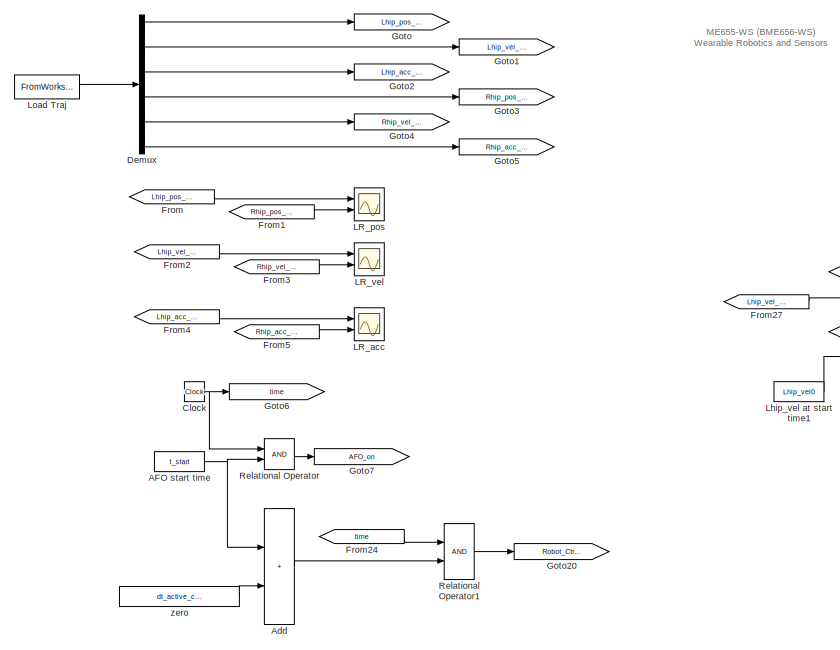
[diagram: root canvas - part 1/2, middle left region]
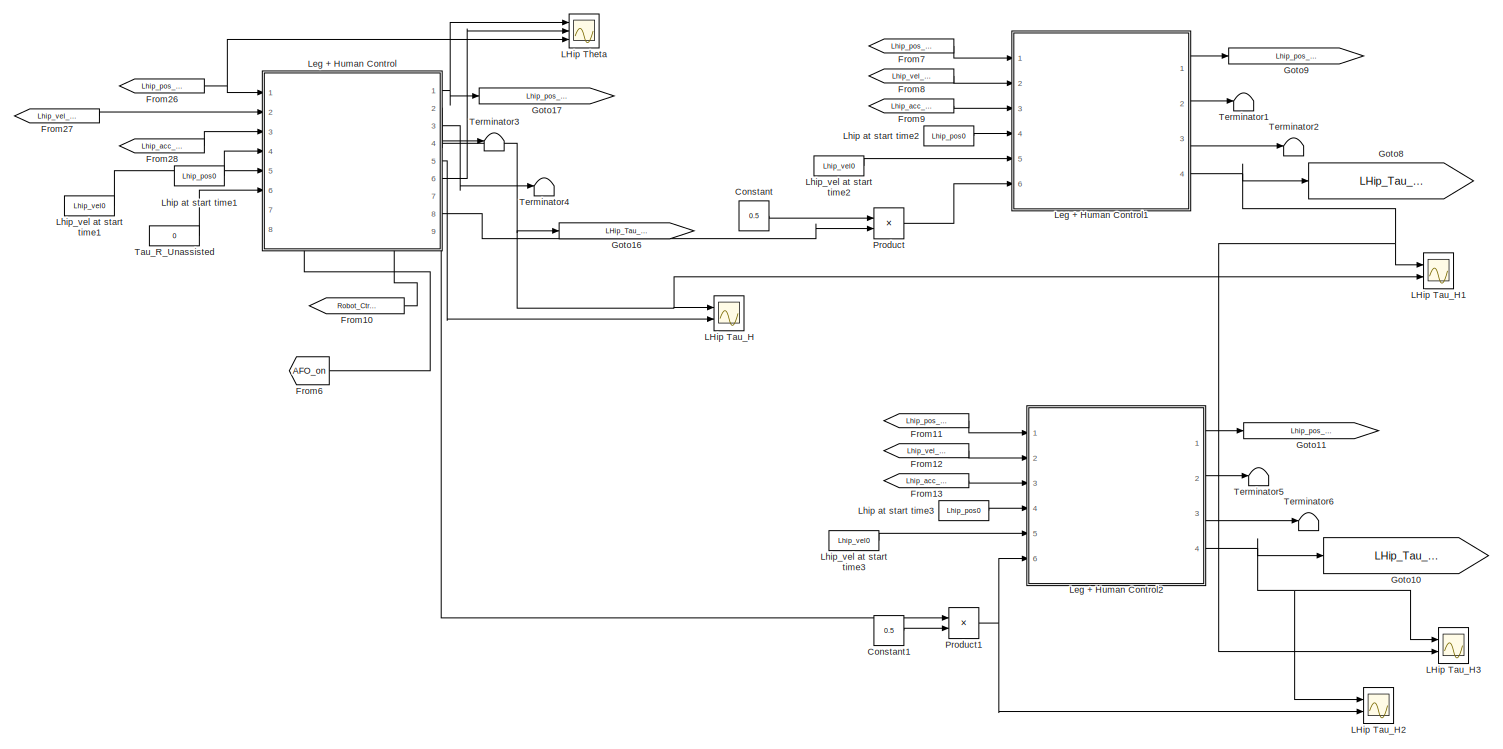
[diagram: root canvas - part 2/2, center side, full height]
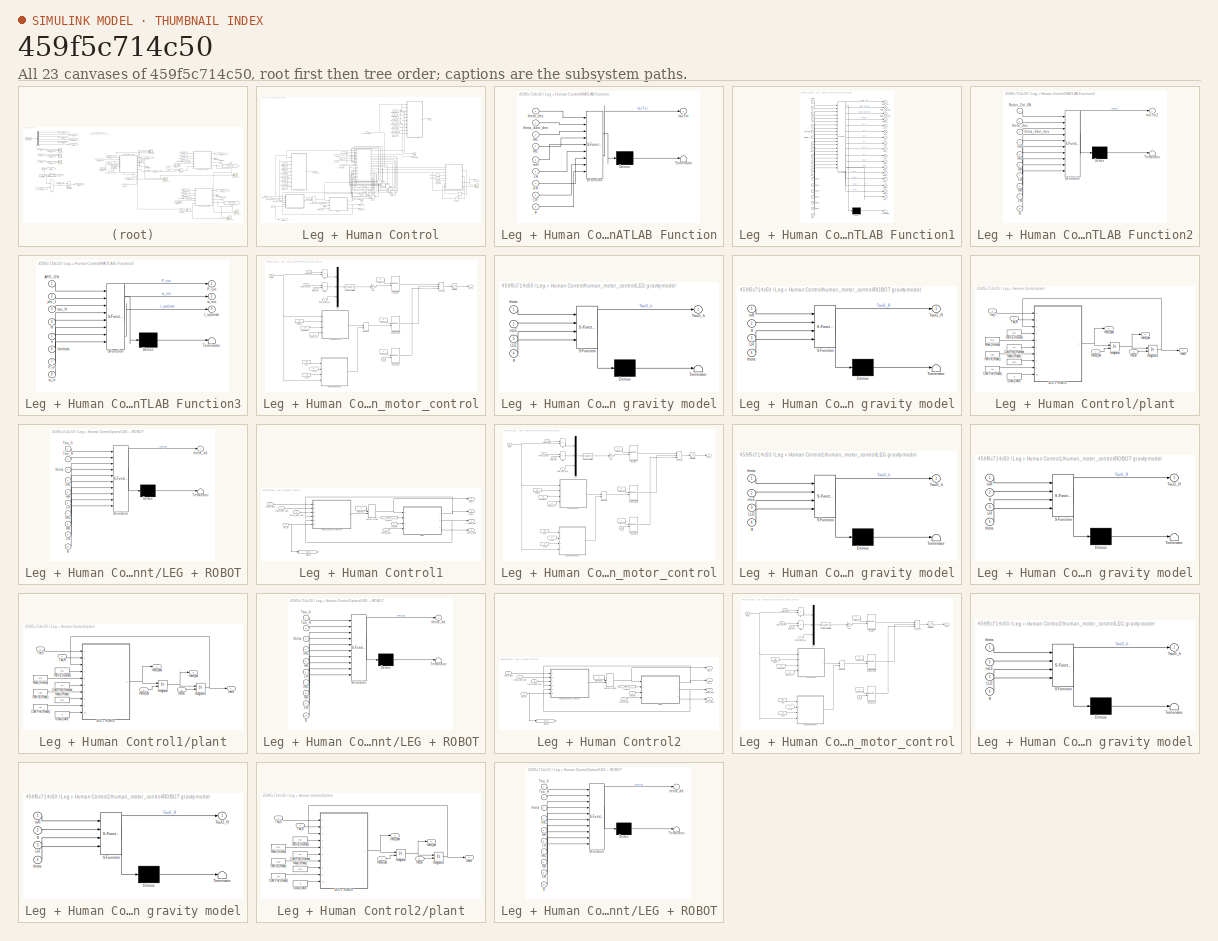
[diagram: thumbnail index - all 23 canvases of the model, root first then tree order]
MODEL slx_459f5c714c50
KIND model
CONFIG AbsTol = auto
CONFIG EnableMultiTasking = off
CONFIG FixedStep = .003
CONFIG MaxStep = auto
CONFIG MinStep = auto
CONFIG RelTol = 1e-3
CONFIG SampleTimeConstraint = Unconstrained
CONFIG SolverName = FixedStepAuto
CONFIG StartTime = 0.0
CONFIG StopTime = 60.0
BLOCK [Constant] AFO start time
  Value = t_start
BLOCK [Sum] Add
  IconShape = rectangular
  Ports = [2, 1]
BLOCK [Clock] Clock
BLOCK [Constant] Constant
  Value = 0.5
BLOCK [Constant] Constant1
  Value = 0.5
BLOCK [Demux] Demux
  Outputs = 6
  Ports = [1, 6]
BLOCK [From] From
  GotoTag = Lhip_pos_des
BLOCK [From] From1
  GotoTag = Rhip_pos_des
BLOCK [From] From10
  GotoTag = Robot_Ctrl_ON
BLOCK [From] From11
  GotoTag = Lhip_pos_des
BLOCK [From] From12
  GotoTag = Lhip_vel_des
BLOCK [From] From13
  GotoTag = Lhip_acc_des
BLOCK [From] From2
  GotoTag = Lhip_vel_des
BLOCK [From] From24
  GotoTag = time
BLOCK [From] From26
  GotoTag = Lhip_pos_des
BLOCK [From] From27
  GotoTag = Lhip_vel_des
BLOCK [From] From28
  GotoTag = Lhip_acc_des
BLOCK [From] From3
  GotoTag = Rhip_vel_des
BLOCK [From] From4
  GotoTag = Lhip_acc_des
BLOCK [From] From5
  GotoTag = Rhip_acc_des
BLOCK [From] From6
  GotoTag = AFO_on
BLOCK [From] From7
  GotoTag = Lhip_pos_des
BLOCK [From] From8
  GotoTag = Lhip_vel_des
BLOCK [From] From9
  GotoTag = Lhip_acc_des
BLOCK [Goto] Goto
  GotoTag = Lhip_pos_des
BLOCK [Goto] Goto1
  GotoTag = Lhip_vel_des
BLOCK [Goto] Goto10
  GotoTag = LHip_Tau_h_No_Assist3
BLOCK [Goto] Goto11
  GotoTag = Lhip_pos_No_Assist3
BLOCK [Goto] Goto16
  GotoTag = LHip_Tau_h_No_Assist
BLOCK [Goto] Goto17
  GotoTag = Lhip_pos_No_Assist
BLOCK [Goto] Goto2
  GotoTag = Lhip_acc_des
BLOCK [Goto] Goto20
  GotoTag = Robot_Ctrl_ON
BLOCK [Goto] Goto3
  GotoTag = Rhip_pos_des
BLOCK [Goto] Goto4
  GotoTag = Rhip_vel_des
BLOCK [Goto] Goto5
  GotoTag = Rhip_acc_des
BLOCK [Goto] Goto6
  GotoTag = time
BLOCK [Goto] Goto7
  GotoTag = AFO_on
BLOCK [Goto] Goto8
  GotoTag = LHip_Tau_h_No_Assist2
BLOCK [Goto] Goto9
  GotoTag = Lhip_pos_No_Assist2
BLOCK [Scope] LHip Tau_H
  Floating = off
  NumInputPorts = 2
  Ports = [2]
  ScopeSpecificationString = Simulink.scopes.TimeScopeBlockCfg('CurrentConfiguration', extmgr.ConfigurationSet(extmgr.Configuration('Core','General UI',true),extmgr.Configuration('Core','Source UI',true),extmgr.Configuration('Sources','WiredSimulink',true,'DataLoggingVariableName','ScopeData2'),extmgr.Configuration('Visuals','Time Domain',true,'SerializedDisplays',{struct('MinYLimReal','-8.89963','MaxYLimReal','20.64491','YLa...<+1557ch>
BLOCK [Scope] LHip Tau_H1
  Floating = off
  NumInputPorts = 2
  Ports = [2]
  ScopeSpecificationString = Simulink.scopes.TimeScopeBlockCfg('CurrentConfiguration', extmgr.ConfigurationSet(extmgr.Configuration('Core','General UI',true),extmgr.Configuration('Core','Source UI',true),extmgr.Configuration('Sources','WiredSimulink',true,'DataLoggingVariableName','ScopeData1'),extmgr.Configuration('Visuals','Time Domain',true,'SerializedDisplays',{struct('MinYLimReal','-10.96093','MaxYLimReal','21.78397','YL...<+1555ch>
BLOCK [Scope] LHip Tau_H2
  Floating = off
  NumInputPorts = 2
  Ports = [2]
  ScopeSpecificationString = Simulink.scopes.TimeScopeBlockCfg('CurrentConfiguration', extmgr.ConfigurationSet(extmgr.Configuration('Core','General UI',true),extmgr.Configuration('Core','Source UI',true),extmgr.Configuration('Sources','WiredSimulink',true,'DataLoggingVariableName','ScopeData1'),extmgr.Configuration('Visuals','Time Domain',true,'SerializedDisplays',{struct('MinYLimReal','-4.87311','MaxYLimReal','19.11045','YLa...<+1535ch>
BLOCK [Scope] LHip Tau_H3
  Floating = off
  NumInputPorts = 2
  Ports = [2]
  ScopeSpecificationString = Simulink.scopes.TimeScopeBlockCfg('CurrentConfiguration', extmgr.ConfigurationSet(extmgr.Configuration('Core','General UI',true),extmgr.Configuration('Core','Source UI',true),extmgr.Configuration('Sources','WiredSimulink',true,'DataLoggingVariableName','ScopeData2'),extmgr.Configuration('Visuals','Time Domain',true,'SerializedDisplays',{struct('MinYLimReal','-10.73626','MaxYLimReal','19.76191','YL...<+1551ch>
BLOCK [Scope] LHip Theta
  Floating = off
  NumInputPorts = 3
  Ports = [3]
  ScopeSpecificationString = Simulink.scopes.TimeScopeBlockCfg('CurrentConfiguration', extmgr.ConfigurationSet(extmgr.Configuration('Core','General UI',true),extmgr.Configuration('Core','Source UI',true),extmgr.Configuration('Sources','WiredSimulink',true,'DataLoggingVariableName','ScopeData1'),extmgr.Configuration('Visuals','Time Domain',true,'SerializedDisplays',{struct('MinYLimReal','-0.18369','MaxYLimReal','0.35711','YLab...<+1584ch>
BLOCK [Scope] LR_acc 
  Floating = off
  NumInputPorts = 2
  Ports = [2]
  ScopeSpecificationString = Simulink.scopes.TimeScopeBlockCfg('CurrentConfiguration', extmgr.ConfigurationSet(extmgr.Configuration('Core','General UI',true),extmgr.Configuration('Core','Source UI',true),extmgr.Configuration('Sources','WiredSimulink',true,'DataLoggingVariableName','ScopeData1'),extmgr.Configuration('Visuals','Time Domain',true,'SerializedDisplays',{struct('MinYLimReal','-6.53155','MaxYLimReal','8.33804','YLab...<+1374ch>
BLOCK [Scope] LR_pos
  Floating = off
  NumInputPorts = 2
  Ports = [2]
  ScopeSpecificationString = Simulink.scopes.TimeScopeBlockCfg('CurrentConfiguration', extmgr.ConfigurationSet(extmgr.Configuration('Core','General UI',true),extmgr.Configuration('Core','Source UI',true),extmgr.Configuration('Sources','WiredSimulink',true),extmgr.Configuration('Visuals','Time Domain',true,'SerializedDisplays',{struct('MinYLimReal','-0.18521','MaxYLimReal','0.37085','YLabelReal','','MinYLimMag','0.00000','MaxY...<+1366ch>
BLOCK [Scope] LR_vel
  Floating = off
  NumInputPorts = 2
  Ports = [2]
  ScopeSpecificationString = Simulink.scopes.TimeScopeBlockCfg('CurrentConfiguration', extmgr.ConfigurationSet(extmgr.Configuration('Core','General UI',true),extmgr.Configuration('Core','Source UI',true),extmgr.Configuration('Sources','WiredSimulink',true,'DataLoggingVariableName','ScopeData1'),extmgr.Configuration('Visuals','Time Domain',true,'SerializedDisplays',{struct('MinYLimReal','-1.19601','MaxYLimReal','1.44346','YLab...<+1403ch>
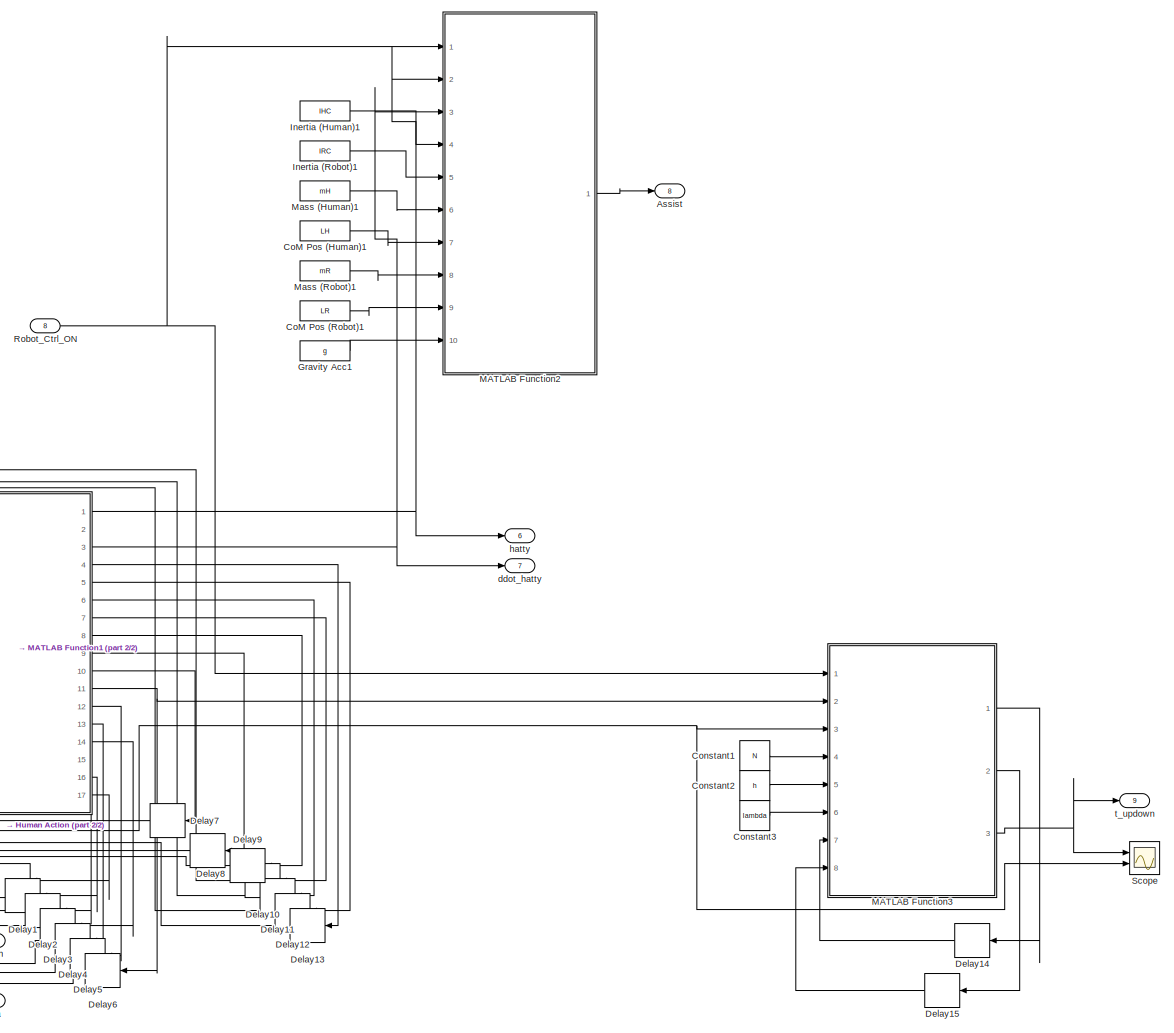
[diagram: Leg + Human Control - part 1/2, right side, full height]
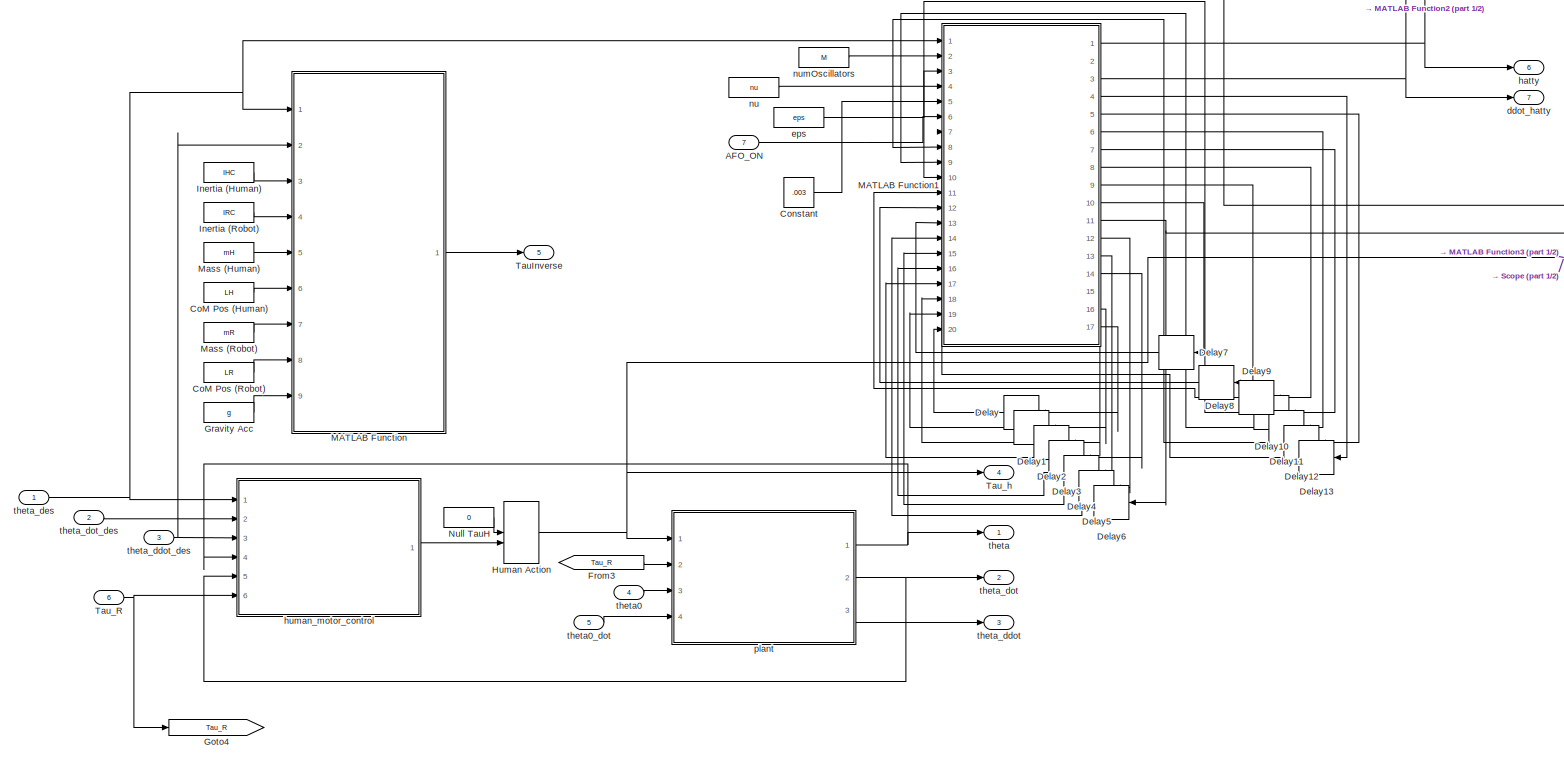
[diagram: Leg + Human Control - part 2/2, bottom center region]
BLOCK [SubSystem] Leg + Human Control
  PortSchema = {"entries":[{"content":{"sides":[{"content":{"connectorIds":["In1","In2","In3","In4","In5","In6"]},"type":"ConnectorPlacement.EquallySpacedRectSide","uuid":"c89990dd-c7dc-4056-83f4-5e6c1198dd9e"},{"content":{"connectorIds":["Out1","Out2","Out3","Out4","Out5","Out6","Out7","Out8","Out9"],"side":"RIGHT"},"type":"ConnectorPlacement.EquallySpacedRectSide","uuid":"97852725-6742-4674-9802-faa7978f5241"}...<+481ch>
  Ports = [8, 9]
  RequestExecContextInheritance = off
BLOCK [Inport] Leg + Human Control/AFO_ON
  Port = 7
BLOCK [Outport] Leg + Human Control/Assist
  Port = 8
BLOCK [Constant] Leg + Human Control/CoM Pos (Human)
  Value = LH
BLOCK [Constant] Leg + Human Control/CoM Pos (Human)1
  Value = LH
BLOCK [Constant] Leg + Human Control/CoM Pos (Robot)
  Value = LR
BLOCK [Constant] Leg + Human Control/CoM Pos (Robot)1
  Value = LR
BLOCK [Constant] Leg + Human Control/Constant
  Value = .003
BLOCK [Constant] Leg + Human Control/Constant1
  Value = N
BLOCK [Constant] Leg + Human Control/Constant2
  Value = h
BLOCK [Constant] Leg + Human Control/Constant3
  Value = lambda
BLOCK [Delay] Leg + Human Control/Delay
  DelayLength = 1
  InitialCondition = 0
  InputPortMap = u0
  Ports = [1, 1]
BLOCK [Delay] Leg + Human Control/Delay1
  DelayLength = 1
  InitialCondition = 0
  InputPortMap = u0
  Ports = [1, 1]
BLOCK [Delay] Leg + Human Control/Delay10
  DelayLength = 1
  InitialCondition = 0
  InputPortMap = u0
  Ports = [1, 1]
BLOCK [Delay] Leg + Human Control/Delay11
  DelayLength = 1
  InitialCondition = 0
  InputPortMap = u0
  Ports = [1, 1]
BLOCK [Delay] Leg + Human Control/Delay12
  DelayLength = 1
  InitialCondition = 0
  InputPortMap = u0
  Ports = [1, 1]
BLOCK [Delay] Leg + Human Control/Delay13
  DelayLength = 1
  InitialCondition = 0
  InputPortMap = u0
  Ports = [1, 1]
BLOCK [Delay] Leg + Human Control/Delay14
  DelayLength = 1
  InitialCondition = 0
  InputPortMap = u0
  Ports = [1, 1]
BLOCK [Delay] Leg + Human Control/Delay15
  DelayLength = 1
  InitialCondition = 0
  InputPortMap = u0
  Ports = [1, 1]
BLOCK [Delay] Leg + Human Control/Delay2
  DelayLength = 1
  InitialCondition = 0
  InputPortMap = u0
  Ports = [1, 1]
BLOCK [Delay] Leg + Human Control/Delay3
  DelayLength = 1
  InitialCondition = 0
  InputPortMap = u0
  Ports = [1, 1]
BLOCK [Delay] Leg + Human Control/Delay4
  DelayLength = 1
  InitialCondition = 0
  InputPortMap = u0
  Ports = [1, 1]
BLOCK [Delay] Leg + Human Control/Delay5
  DelayLength = 1
  InitialCondition = 0
  InputPortMap = u0
  Ports = [1, 1]
BLOCK [Delay] Leg + Human Control/Delay6
  DelayLength = 1
  InitialCondition = 0
  InputPortMap = u0
  Ports = [1, 1]
BLOCK [Delay] Leg + Human Control/Delay7
  DelayLength = 1
  InitialCondition = 0
  InputPortMap = u0
  Ports = [1, 1]
BLOCK [Delay] Leg + Human Control/Delay8
  DelayLength = 1
  InitialCondition = 0
  InputPortMap = u0
  Ports = [1, 1]
BLOCK [Delay] Leg + Human Control/Delay9
  DelayLength = 1
  InitialCondition = 0
  InputPortMap = u0
  Ports = [1, 1]
BLOCK [From] Leg + Human Control/From3
  GotoTag = Tau_R
BLOCK [Goto] Leg + Human Control/Goto4
  GotoTag = Tau_R
BLOCK [Constant] Leg + Human Control/Gravity Acc
  Value = g
BLOCK [Constant] Leg + Human Control/Gravity Acc1
  Value = g
BLOCK [ManualSwitch] Leg + Human Control/Human Action
  CurrentSetting = 0
BLOCK [Constant] Leg + Human Control/Inertia (Human)
  Value = IHC
BLOCK [Constant] Leg + Human Control/Inertia (Human)1
  Value = IHC
BLOCK [Constant] Leg + Human Control/Inertia (Robot)
  Value = IRC
BLOCK [Constant] Leg + Human Control/Inertia (Robot)1
  Value = IRC
BLOCK [SubSystem] Leg + Human Control/MATLAB Function
  ErrorFcn = Stateflow.Translate.translate
  PermitHierarchicalResolution = ExplicitOnly
  Ports = [9, 1]
  RequestExecContextInheritance = off
  SFBlockType = MATLAB Function
  TreatAsAtomicUnit = on
BLOCK [Demux] Leg + Human Control/MATLAB Function/ Demux 
  Outputs = 1
  Ports = [1, 1]
BLOCK [S-Function] Leg + Human Control/MATLAB Function/ SFunction 
  EnableBusSupport = on
  FunctionName = sf_sfun
  PortCounts = [9 2]
  Ports = [9, 2]
  SFcnIsStateOwnerBlock = off
  SFunctionDeploymentMode = off
  Tag = Stateflow S-Function 2
BLOCK [Terminator] Leg + Human Control/MATLAB Function/ Terminator 
BLOCK [Inport] Leg + Human Control/MATLAB Function/IHC
  Port = 3
BLOCK [Inport] Leg + Human Control/MATLAB Function/IRC
  Port = 4
BLOCK [Inport] Leg + Human Control/MATLAB Function/LH
  Port = 6
BLOCK [Inport] Leg + Human Control/MATLAB Function/LR
  Port = 8
BLOCK [Inport] Leg + Human Control/MATLAB Function/g
  Port = 9
BLOCK [Inport] Leg + Human Control/MATLAB Function/mH
  Port = 5
BLOCK [Inport] Leg + Human Control/MATLAB Function/mR
  Port = 7
BLOCK [Outport] Leg + Human Control/MATLAB Function/tauTot
BLOCK [Inport] Leg + Human Control/MATLAB Function/theta_ddot_des
  Port = 2
BLOCK [Inport] Leg + Human Control/MATLAB Function/theta_des
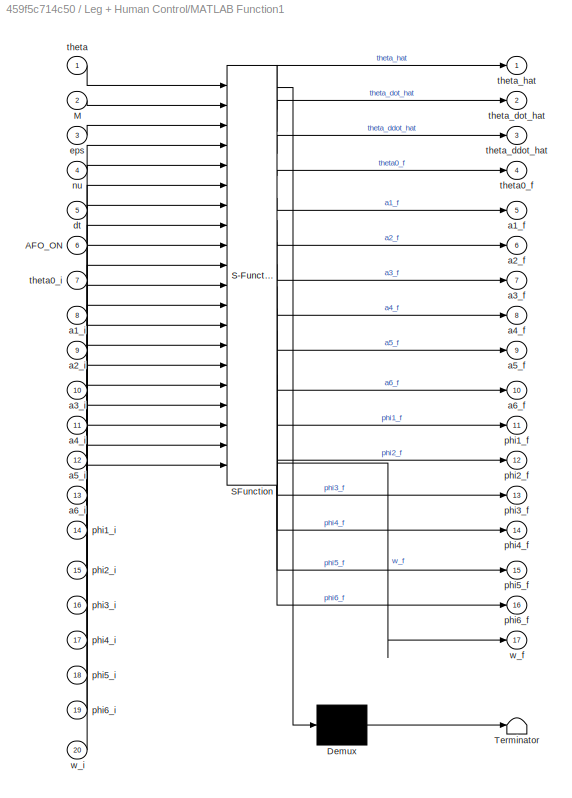
BLOCK [SubSystem] Leg + Human Control/MATLAB Function1
  ErrorFcn = Stateflow.Translate.translate
  PermitHierarchicalResolution = ExplicitOnly
  Ports = [20, 17]
  RequestExecContextInheritance = off
  SFBlockType = MATLAB Function
  TreatAsAtomicUnit = on
BLOCK [Demux] Leg + Human Control/MATLAB Function1/ Demux 
  Outputs = 1
  Ports = [1, 1]
BLOCK [S-Function] Leg + Human Control/MATLAB Function1/ SFunction 
  EnableBusSupport = on
  FunctionName = sf_sfun
  PortCounts = [20 18]
  Ports = [20, 18]
  SFcnIsStateOwnerBlock = off
  SFunctionDeploymentMode = off
  Tag = Stateflow S-Function 1
BLOCK [Terminator] Leg + Human Control/MATLAB Function1/ Terminator 
BLOCK [Inport] Leg + Human Control/MATLAB Function1/AFO_ON
  Port = 6
BLOCK [Inport] Leg + Human Control/MATLAB Function1/M
  Port = 2
BLOCK [Outport] Leg + Human Control/MATLAB Function1/a1_f
  Port = 5
BLOCK [Inport] Leg + Human Control/MATLAB Function1/a1_i
  Port = 8
BLOCK [Outport] Leg + Human Control/MATLAB Function1/a2_f
  Port = 6
BLOCK [Inport] Leg + Human Control/MATLAB Function1/a2_i
  Port = 9
BLOCK [Outport] Leg + Human Control/MATLAB Function1/a3_f
  Port = 7
BLOCK [Inport] Leg + Human Control/MATLAB Function1/a3_i
  Port = 10
BLOCK [Outport] Leg + Human Control/MATLAB Function1/a4_f
  Port = 8
BLOCK [Inport] Leg + Human Control/MATLAB Function1/a4_i
  Port = 11
BLOCK [Outport] Leg + Human Control/MATLAB Function1/a5_f
  Port = 9
BLOCK [Inport] Leg + Human Control/MATLAB Function1/a5_i
  Port = 12
BLOCK [Outport] Leg + Human Control/MATLAB Function1/a6_f
  Port = 10
BLOCK [Inport] Leg + Human Control/MATLAB Function1/a6_i
  Port = 13
BLOCK [Inport] Leg + Human Control/MATLAB Function1/dt
  Port = 5
BLOCK [Inport] Leg + Human Control/MATLAB Function1/eps
  Port = 3
BLOCK [Inport] Leg + Human Control/MATLAB Function1/nu
  Port = 4
BLOCK [Outport] Leg + Human Control/MATLAB Function1/phi1_f
  Port = 11
BLOCK [Inport] Leg + Human Control/MATLAB Function1/phi1_i
  Port = 14
BLOCK [Outport] Leg + Human Control/MATLAB Function1/phi2_f
  Port = 12
BLOCK [Inport] Leg + Human Control/MATLAB Function1/phi2_i
  Port = 15
BLOCK [Outport] Leg + Human Control/MATLAB Function1/phi3_f
  Port = 13
BLOCK [Inport] Leg + Human Control/MATLAB Function1/phi3_i
  Port = 16
BLOCK [Outport] Leg + Human Control/MATLAB Function1/phi4_f
  Port = 14
BLOCK [Inport] Leg + Human Control/MATLAB Function1/phi4_i
  Port = 17
BLOCK [Outport] Leg + Human Control/MATLAB Function1/phi5_f
  Port = 15
BLOCK [Inport] Leg + Human Control/MATLAB Function1/phi5_i
  Port = 18
BLOCK [Outport] Leg + Human Control/MATLAB Function1/phi6_f
  Port = 16
BLOCK [Inport] Leg + Human Control/MATLAB Function1/phi6_i
  Port = 19
BLOCK [Inport] Leg + Human Control/MATLAB Function1/theta
BLOCK [Outport] Leg + Human Control/MATLAB Function1/theta0_f
  Port = 4
BLOCK [Inport] Leg + Human Control/MATLAB Function1/theta0_i
  Port = 7
BLOCK [Outport] Leg + Human Control/MATLAB Function1/theta_ddot_hat
  Port = 3
BLOCK [Outport] Leg + Human Control/MATLAB Function1/theta_dot_hat
  Port = 2
BLOCK [Outport] Leg + Human Control/MATLAB Function1/theta_hat
BLOCK [Outport] Leg + Human Control/MATLAB Function1/w_f
  Port = 17
BLOCK [Inport] Leg + Human Control/MATLAB Function1/w_i
  Port = 20
BLOCK [SubSystem] Leg + Human Control/MATLAB Function2
  ErrorFcn = Stateflow.Translate.translate
  PermitHierarchicalResolution = ExplicitOnly
  Ports = [10, 1]
  RequestExecContextInheritance = off
  SFBlockType = MATLAB Function
  TreatAsAtomicUnit = on
BLOCK [Demux] Leg + Human Control/MATLAB Function2/ Demux 
  Outputs = 1
  Ports = [1, 1]
BLOCK [S-Function] Leg + Human Control/MATLAB Function2/ SFunction 
  EnableBusSupport = on
  FunctionName = sf_sfun
  PortCounts = [10 2]
  Ports = [10, 2]
  SFcnIsStateOwnerBlock = off
  SFunctionDeploymentMode = off
  Tag = Stateflow S-Function 3
BLOCK [Terminator] Leg + Human Control/MATLAB Function2/ Terminator 
BLOCK [Inport] Leg + Human Control/MATLAB Function2/IHC
  Port = 4
BLOCK [Inport] Leg + Human Control/MATLAB Function2/IRC
  Port = 5
BLOCK [Inport] Leg + Human Control/MATLAB Function2/LH
  Port = 7
BLOCK [Inport] Leg + Human Control/MATLAB Function2/LR
  Port = 9
BLOCK [Inport] Leg + Human Control/MATLAB Function2/Robot_Ctrl_ON
BLOCK [Inport] Leg + Human Control/MATLAB Function2/g
  Port = 10
BLOCK [Inport] Leg + Human Control/MATLAB Function2/mH
  Port = 6
BLOCK [Inport] Leg + Human Control/MATLAB Function2/mR
  Port = 8
BLOCK [Outport] Leg + Human Control/MATLAB Function2/tauTot2
BLOCK [Inport] Leg + Human Control/MATLAB Function2/theta_ddot_des
  Port = 3
BLOCK [Inport] Leg + Human Control/MATLAB Function2/theta_des
  Port = 2
BLOCK [SubSystem] Leg + Human Control/MATLAB Function3
  ErrorFcn = Stateflow.Translate.translate
  PermitHierarchicalResolution = ExplicitOnly
  Ports = [8, 3]
  RequestExecContextInheritance = off
  SFBlockType = MATLAB Function
  TreatAsAtomicUnit = on
BLOCK [Demux] Leg + Human Control/MATLAB Function3/ Demux 
  Outputs = 1
  Ports = [1, 1]
BLOCK [S-Function] Leg + Human Control/MATLAB Function3/ SFunction 
  EnableBusSupport = on
  FunctionName = sf_sfun
  PortCounts = [8 4]
  Ports = [8, 4]
  SFcnIsStateOwnerBlock = off
  SFunctionDeploymentMode = off
  Tag = Stateflow S-Function 4
BLOCK [Terminator] Leg + Human Control/MATLAB Function3/ Terminator 
BLOCK [Inport] Leg + Human Control/MATLAB Function3/AFO_ON
BLOCK [Inport] Leg + Human Control/MATLAB Function3/N
  Port = 4
BLOCK [Inport] Leg + Human Control/MATLAB Function3/P_in
  Port = 7
BLOCK [Outport] Leg + Human Control/MATLAB Function3/P_out
BLOCK [Inport] Leg + Human Control/MATLAB Function3/h
  Port = 5
BLOCK [Inport] Leg + Human Control/MATLAB Function3/lambda
  Port = 6
BLOCK [Inport] Leg + Human Control/MATLAB Function3/phi_1
  Port = 2
BLOCK [Outport] Leg + Human Control/MATLAB Function3/t_updown
  Port = 3
BLOCK [Inport] Leg + Human Control/MATLAB Function3/tau_H
  Port = 3
BLOCK [Inport] Leg + Human Control/MATLAB Function3/w_in
  Port = 8
BLOCK [Outport] Leg + Human Control/MATLAB Function3/w_out
  Port = 2
BLOCK [Constant] Leg + Human Control/Mass (Human)
  Value = mH
BLOCK [Constant] Leg + Human Control/Mass (Human)1
  Value = mH
BLOCK [Constant] Leg + Human Control/Mass (Robot)
  Value = mR
BLOCK [Constant] Leg + Human Control/Mass (Robot)1
  Value = mR
BLOCK [Constant] Leg + Human Control/Null TauH
  Value = 0
BLOCK [Inport] Leg + Human Control/Robot_Ctrl_ON
  Port = 8
BLOCK [Scope] Leg + Human Control/Scope
  Floating = off
  NumInputPorts = 2
  Ports = [2]
  ScopeSpecificationString = Simulink.scopes.TimeScopeBlockCfg('CurrentConfiguration', extmgr.ConfigurationSet(extmgr.Configuration('Core','General UI',true),extmgr.Configuration('Core','Source UI',true),extmgr.Configuration('Sources','WiredSimulink',true,'DataLoggingVariableName','ScopeData1'),extmgr.Configuration('Visuals','Time Domain',true,'SerializedDisplays',{struct('MinYLimReal','-4.12984','MaxYLimReal','16.52197','YLa...<+1538ch>
BLOCK [Outport] Leg + Human Control/TauInverse
  Port = 5
BLOCK [Inport] Leg + Human Control/Tau_R
  Port = 6
BLOCK [Outport] Leg + Human Control/Tau_h
  Port = 4
  PortDimensions = [1,1]
  VarSizeSig = No
  VectorParamsAs1DForOutWhenUnconnected = off
BLOCK [Outport] Leg + Human Control/ddot_hatty
  Port = 7
BLOCK [Constant] Leg + Human Control/eps
  Value = eps
BLOCK [Outport] Leg + Human Control/hatty
  Port = 6
BLOCK [SubSystem] Leg + Human Control/human_motor_control
  Ports = [6, 1]
  RequestExecContextInheritance = off
BLOCK [Sum] Leg + Human Control/human_motor_control/Err
  IconShape = rectangular
  Inputs = +-
  Ports = [2, 1]
BLOCK [Sum] Leg + Human Control/human_motor_control/Err1
  IconShape = rectangular
  Inputs = +-
  Ports = [2, 1]
BLOCK [Sum] Leg + Human Control/human_motor_control/GravSum
  IconShape = rectangular
  Ports = [2, 1]
BLOCK [ManualSwitch] Leg + Human Control/human_motor_control/Human Gravity Comp Enabler
  CurrentSetting = 0
BLOCK [Gain] Leg + Human Control/human_motor_control/Itot
  Gain = (IRC + mR*LR^2) + (IHC + mH*LH^2)
BLOCK [SubSystem] Leg + Human Control/human_motor_control/LEG gravity model
  ErrorFcn = Stateflow.Translate.translate
  PermitHierarchicalResolution = ExplicitOnly
  Ports = [4, 1]
  RequestExecContextInheritance = off
  SFBlockType = MATLAB Function
  TreatAsAtomicUnit = on
BLOCK [Demux] Leg + Human Control/human_motor_control/LEG gravity model/ Demux 
  Outputs = 1
  Ports = [1, 1]
BLOCK [S-Function] Leg + Human Control/human_motor_control/LEG gravity model/ SFunction 
  EnableBusSupport = on
  FunctionName = sf_sfun
  PortCounts = [4 2]
  Ports = [4, 2]
  SFcnIsStateOwnerBlock = off
  SFunctionDeploymentMode = off
  Tag = Stateflow S-Function 9
BLOCK [Terminator] Leg + Human Control/human_motor_control/LEG gravity model/ Terminator 
BLOCK [Inport] Leg + Human Control/human_motor_control/LEG gravity model/LLE
  Port = 3
BLOCK [Outport] Leg + Human Control/human_motor_control/LEG gravity model/TauG_h
  VectorParamsAs1DForOutWhenUnconnected = off
BLOCK [Inport] Leg + Human Control/human_motor_control/LEG gravity model/g
  Port = 4
BLOCK [Inport] Leg + Human Control/human_motor_control/LEG gravity model/mLE
  Port = 2
BLOCK [Inport] Leg + Human Control/human_motor_control/LEG gravity model/theta
BLOCK [Mux] Leg + Human Control/human_motor_control/Mux
  DisplayOption = bar
  Inputs = 3
  Ports = [3, 1]
BLOCK [Constant] Leg + Human Control/human_motor_control/Null TauH
  Value = 0
BLOCK [Constant] Leg + Human Control/human_motor_control/Null TauH1
  Value = 0
BLOCK [Constant] Leg + Human Control/human_motor_control/Null TauH2
  Value = 0
BLOCK [SubSystem] Leg + Human Control/human_motor_control/ROBOT gravity model
  ErrorFcn = Stateflow.Translate.translate
  PermitHierarchicalResolution = ExplicitOnly
  Ports = [4, 1]
  RequestExecContextInheritance = off
  SFBlockType = MATLAB Function
  TreatAsAtomicUnit = on
BLOCK [Demux] Leg + Human Control/human_motor_control/ROBOT gravity model/ Demux 
  Outputs = 1
  Ports = [1, 1]
BLOCK [S-Function] Leg + Human Control/human_motor_control/ROBOT gravity model/ SFunction 
  EnableBusSupport = on
  FunctionName = sf_sfun
  PortCounts = [4 2]
  Ports = [4, 2]
  SFcnIsStateOwnerBlock = off
  SFunctionDeploymentMode = off
  Tag = Stateflow S-Function 12
BLOCK [Terminator] Leg + Human Control/human_motor_control/ROBOT gravity model/ Terminator 
BLOCK [Inport] Leg + Human Control/human_motor_control/ROBOT gravity model/LR
  Port = 3
BLOCK [Outport] Leg + Human Control/human_motor_control/ROBOT gravity model/TauG_R
  VectorParamsAs1DForOutWhenUnconnected = off
BLOCK [Inport] Leg + Human Control/human_motor_control/ROBOT gravity model/g
  Port = 2
BLOCK [Inport] Leg + Human Control/human_motor_control/ROBOT gravity model/mR
BLOCK [Inport] Leg + Human Control/human_motor_control/ROBOT gravity model/theta
  Port = 4
BLOCK [ManualSwitch] Leg + Human Control/human_motor_control/Robot Torque Feedback
  CurrentSetting = 0
BLOCK [Saturate] Leg + Human Control/human_motor_control/Saturation
  LowerLimit = -Tau_h_max
  UpperLimit = Tau_h_max
BLOCK [ManualSwitch] Leg + Human Control/human_motor_control/Servo Control Enabler
  CurrentSetting = 0
BLOCK [Sum] Leg + Human Control/human_motor_control/SumTauH
  IconShape = rectangular
  Inputs = ++-
  Ports = [3, 1]
BLOCK [Inport] Leg + Human Control/human_motor_control/TauR
  Port = 6
BLOCK [Outport] Leg + Human Control/human_motor_control/Tau_h
  PortDimensions = [1,1]
  VarSizeSig = No
  VectorParamsAs1DForOutWhenUnconnected = off
BLOCK [Constant] Leg + Human Control/human_motor_control/Tot mass
  Value = mH
BLOCK [Constant] Leg + Human Control/human_motor_control/cost
  Value = mR
BLOCK [Constant] Leg + Human Control/human_motor_control/cost1
  Value = g
BLOCK [Constant] Leg + Human Control/human_motor_control/cost2
  Value = LR
BLOCK [Constant] Leg + Human Control/human_motor_control/gravity accel
  Value = g
BLOCK [Fcn] Leg + Human Control/human_motor_control/human controller
  Expr = Kh*u(1)+Bh*u(2)+u(3)
BLOCK [Constant] Leg + Human Control/human_motor_control/pos of CoM
  Value = LH
BLOCK [Inport] Leg + Human Control/human_motor_control/theta
  Port = 4
BLOCK [Inport] Leg + Human Control/human_motor_control/theta_ddot_des
  Port = 3
BLOCK [Inport] Leg + Human Control/human_motor_control/theta_des
BLOCK [Inport] Leg + Human Control/human_motor_control/theta_dot
  Port = 5
BLOCK [Inport] Leg + Human Control/human_motor_control/theta_dot_des
  Port = 2
BLOCK [Constant] Leg + Human Control/nu
  Value = nu
BLOCK [Constant] Leg + Human Control/numOscillators
  Value = M
BLOCK [SubSystem] Leg + Human Control/plant
  Ports = [4, 3]
  RequestExecContextInheritance = off
BLOCK [Constant] Leg + Human Control/plant/CoM Pos (Human)
  Value = LH
BLOCK [Constant] Leg + Human Control/plant/CoM Pos (Robot)
  Value = LR
BLOCK [Constant] Leg + Human Control/plant/Gravity Acc
  Value = g
BLOCK [Constant] Leg + Human Control/plant/Inertia (Human)
  Value = IHC
  VectorParams1D = off
BLOCK [Constant] Leg + Human Control/plant/Inertia (Robot)
  Value = IRC
BLOCK [Integrator] Leg + Human Control/plant/Integrator
  InitialCondition = theta_d0
  InitialConditionSource = external
  Ports = [2, 1]
BLOCK [Integrator] Leg + Human Control/plant/Integrator1
  InitialCondition = theta_0
  InitialConditionSource = external
  Ports = [2, 1]
BLOCK [SubSystem] Leg + Human Control/plant/LEG + ROBOT
  ErrorFcn = Stateflow.Translate.translate
  PermitHierarchicalResolution = ExplicitOnly
  Ports = [10, 1]
  RequestExecContextInheritance = off
  SFBlockType = MATLAB Function
  TreatAsAtomicUnit = on
BLOCK [Demux] Leg + Human Control/plant/LEG + ROBOT/ Demux 
  Outputs = 1
  Ports = [1, 1]
BLOCK [S-Function] Leg + Human Control/plant/LEG + ROBOT/ SFunction 
  EnableBusSupport = on
  FunctionName = sf_sfun
  PortCounts = [10 2]
  Ports = [10, 2]
  SFcnIsStateOwnerBlock = off
  SFunctionDeploymentMode = off
  Tag = Stateflow S-Function 14
BLOCK [Terminator] Leg + Human Control/plant/LEG + ROBOT/ Terminator 
BLOCK [Inport] Leg + Human Control/plant/LEG + ROBOT/IHC
  Port = 4
BLOCK [Inport] Leg + Human Control/plant/LEG + ROBOT/IRC
  Port = 7
BLOCK [Inport] Leg + Human Control/plant/LEG + ROBOT/LH
  Port = 6
BLOCK [Inport] Leg + Human Control/plant/LEG + ROBOT/LR
  Port = 9
BLOCK [Inport] Leg + Human Control/plant/LEG + ROBOT/Tau_R
  Port = 2
BLOCK [Inport] Leg + Human Control/plant/LEG + ROBOT/Tau_h
BLOCK [Inport] Leg + Human Control/plant/LEG + ROBOT/g
  Port = 10
BLOCK [Inport] Leg + Human Control/plant/LEG + ROBOT/mH
  Port = 5
BLOCK [Inport] Leg + Human Control/plant/LEG + ROBOT/mR
  Port = 8
BLOCK [Inport] Leg + Human Control/plant/LEG + ROBOT/theta
  Port = 3
BLOCK [Outport] Leg + Human Control/plant/LEG + ROBOT/theta_dd
  VectorParamsAs1DForOutWhenUnconnected = off
BLOCK [Constant] Leg + Human Control/plant/Mass (Human)
  Value = mH
BLOCK [Constant] Leg + Human Control/plant/Mass (Robot)
  Value = mR
BLOCK [Inport] Leg + Human Control/plant/Tau_R
  Port = 2
BLOCK [Inport] Leg + Human Control/plant/Tau_h
BLOCK [Outport] Leg + Human Control/plant/theta
  PortDimensions = [1,1]
  VarSizeSig = No
  VectorParamsAs1DForOutWhenUnconnected = off
BLOCK [Inport] Leg + Human Control/plant/theta0
  Port = 3
BLOCK [Inport] Leg + Human Control/plant/theta0_dot
  Port = 4
BLOCK [Outport] Leg + Human Control/plant/theta_ddot
  Port = 3
  PortDimensions = [1,1]
  VarSizeSig = No
  VectorParamsAs1DForOutWhenUnconnected = off
BLOCK [Outport] Leg + Human Control/plant/theta_dot
  Port = 2
  PortDimensions = [1,1]
  VarSizeSig = No
  VectorParamsAs1DForOutWhenUnconnected = off
BLOCK [Outport] Leg + Human Control/t_updown
  Port = 9
BLOCK [Outport] Leg + Human Control/theta
  PortDimensions = [1,1]
  VarSizeSig = No
  VectorParamsAs1DForOutWhenUnconnected = off
BLOCK [Inport] Leg + Human Control/theta0
  Port = 4
BLOCK [Inport] Leg + Human Control/theta0_dot
  Port = 5
BLOCK [Outport] Leg + Human Control/theta_ddot
  Port = 3
  PortDimensions = [1,1]
  VarSizeSig = No
  VectorParamsAs1DForOutWhenUnconnected = off
BLOCK [Inport] Leg + Human Control/theta_ddot_des
  Port = 3
BLOCK [Inport] Leg + Human Control/theta_des
BLOCK [Outport] Leg + Human Control/theta_dot
  Port = 2
  PortDimensions = [1,1]
  VarSizeSig = No
  VectorParamsAs1DForOutWhenUnconnected = off
BLOCK [Inport] Leg + Human Control/theta_dot_des
  Port = 2
BLOCK [SubSystem] Leg + Human Control1
  Ports = [6, 4]
  RequestExecContextInheritance = off
BLOCK [From] Leg + Human Control1/From3
  GotoTag = Tau_R
BLOCK [Goto] Leg + Human Control1/Goto4
  GotoTag = Tau_R
BLOCK [ManualSwitch] Leg + Human Control1/Human Action
  CurrentSetting = 0
BLOCK [Constant] Leg + Human Control1/Null TauH
  Value = 0
BLOCK [Inport] Leg + Human Control1/Tau_R
  Port = 6
BLOCK [Outport] Leg + Human Control1/Tau_h
  Port = 4
  PortDimensions = [1,1]
  VarSizeSig = No
  VectorParamsAs1DForOutWhenUnconnected = off
BLOCK [SubSystem] Leg + Human Control1/human_motor_control
  Ports = [6, 1]
  RequestExecContextInheritance = off
BLOCK [Sum] Leg + Human Control1/human_motor_control/Err
  IconShape = rectangular
  Inputs = +-
  Ports = [2, 1]
BLOCK [Sum] Leg + Human Control1/human_motor_control/Err1
  IconShape = rectangular
  Inputs = +-
  Ports = [2, 1]
BLOCK [Sum] Leg + Human Control1/human_motor_control/GravSum
  IconShape = rectangular
  Ports = [2, 1]
BLOCK [ManualSwitch] Leg + Human Control1/human_motor_control/Human Gravity Comp Enabler
  CurrentSetting = 0
BLOCK [Gain] Leg + Human Control1/human_motor_control/Itot
  Gain = (IRC + mR*LR^2) + (IHC + mH*LH^2)
BLOCK [SubSystem] Leg + Human Control1/human_motor_control/LEG gravity model
  ErrorFcn = Stateflow.Translate.translate
  PermitHierarchicalResolution = ExplicitOnly
  Ports = [4, 1]
  RequestExecContextInheritance = off
  SFBlockType = MATLAB Function
  TreatAsAtomicUnit = on
BLOCK [Demux] Leg + Human Control1/human_motor_control/LEG gravity model/ Demux 
  Outputs = 1
  Ports = [1, 1]
BLOCK [S-Function] Leg + Human Control1/human_motor_control/LEG gravity model/ SFunction 
  EnableBusSupport = on
  FunctionName = sf_sfun
  PortCounts = [4 2]
  Ports = [4, 2]
  SFcnIsStateOwnerBlock = off
  SFunctionDeploymentMode = off
  Tag = Stateflow S-Function 7
BLOCK [Terminator] Leg + Human Control1/human_motor_control/LEG gravity model/ Terminator 
BLOCK [Inport] Leg + Human Control1/human_motor_control/LEG gravity model/LLE
  Port = 3
BLOCK [Outport] Leg + Human Control1/human_motor_control/LEG gravity model/TauG_h
  VectorParamsAs1DForOutWhenUnconnected = off
BLOCK [Inport] Leg + Human Control1/human_motor_control/LEG gravity model/g
  Port = 4
BLOCK [Inport] Leg + Human Control1/human_motor_control/LEG gravity model/mLE
  Port = 2
BLOCK [Inport] Leg + Human Control1/human_motor_control/LEG gravity model/theta
BLOCK [Mux] Leg + Human Control1/human_motor_control/Mux
  DisplayOption = bar
  Inputs = 3
  Ports = [3, 1]
BLOCK [Constant] Leg + Human Control1/human_motor_control/Null TauH
  Value = 0
BLOCK [Constant] Leg + Human Control1/human_motor_control/Null TauH1
  Value = 0
BLOCK [Constant] Leg + Human Control1/human_motor_control/Null TauH2
  Value = 0
BLOCK [SubSystem] Leg + Human Control1/human_motor_control/ROBOT gravity model
  ErrorFcn = Stateflow.Translate.translate
  PermitHierarchicalResolution = ExplicitOnly
  Ports = [4, 1]
  RequestExecContextInheritance = off
  SFBlockType = MATLAB Function
  TreatAsAtomicUnit = on
BLOCK [Demux] Leg + Human Control1/human_motor_control/ROBOT gravity model/ Demux 
  Outputs = 1
  Ports = [1, 1]
BLOCK [S-Function] Leg + Human Control1/human_motor_control/ROBOT gravity model/ SFunction 
  EnableBusSupport = on
  FunctionName = sf_sfun
  PortCounts = [4 2]
  Ports = [4, 2]
  SFcnIsStateOwnerBlock = off
  SFunctionDeploymentMode = off
  Tag = Stateflow S-Function 8
BLOCK [Terminator] Leg + Human Control1/human_motor_control/ROBOT gravity model/ Terminator 
BLOCK [Inport] Leg + Human Control1/human_motor_control/ROBOT gravity model/LR
  Port = 3
BLOCK [Outport] Leg + Human Control1/human_motor_control/ROBOT gravity model/TauG_R
  VectorParamsAs1DForOutWhenUnconnected = off
BLOCK [Inport] Leg + Human Control1/human_motor_control/ROBOT gravity model/g
  Port = 2
BLOCK [Inport] Leg + Human Control1/human_motor_control/ROBOT gravity model/mR
BLOCK [Inport] Leg + Human Control1/human_motor_control/ROBOT gravity model/theta
  Port = 4
BLOCK [ManualSwitch] Leg + Human Control1/human_motor_control/Robot Torque Feedback
  CurrentSetting = 0
BLOCK [Saturate] Leg + Human Control1/human_motor_control/Saturation
  LowerLimit = -Tau_h_max
  UpperLimit = Tau_h_max
BLOCK [ManualSwitch] Leg + Human Control1/human_motor_control/Servo Control Enabler
  CurrentSetting = 0
BLOCK [Sum] Leg + Human Control1/human_motor_control/SumTauH
  IconShape = rectangular
  Inputs = ++-
  Ports = [3, 1]
BLOCK [Inport] Leg + Human Control1/human_motor_control/TauR
  Port = 6
BLOCK [Outport] Leg + Human Control1/human_motor_control/Tau_h
  PortDimensions = [1,1]
  VarSizeSig = No
  VectorParamsAs1DForOutWhenUnconnected = off
BLOCK [Constant] Leg + Human Control1/human_motor_control/Tot mass
  Value = mH
BLOCK [Constant] Leg + Human Control1/human_motor_control/cost
  Value = mR
BLOCK [Constant] Leg + Human Control1/human_motor_control/cost1
  Value = g
BLOCK [Constant] Leg + Human Control1/human_motor_control/cost2
  Value = LR
BLOCK [Constant] Leg + Human Control1/human_motor_control/gravity accel
  Value = g
BLOCK [Fcn] Leg + Human Control1/human_motor_control/human controller
  Expr = Kh*u(1)+Bh*u(2)+u(3)
BLOCK [Constant] Leg + Human Control1/human_motor_control/pos of CoM
  Value = LH
BLOCK [Inport] Leg + Human Control1/human_motor_control/theta
  Port = 4
BLOCK [Inport] Leg + Human Control1/human_motor_control/theta_ddot_des
  Port = 3
BLOCK [Inport] Leg + Human Control1/human_motor_control/theta_des
BLOCK [Inport] Leg + Human Control1/human_motor_control/theta_dot
  Port = 5
BLOCK [Inport] Leg + Human Control1/human_motor_control/theta_dot_des
  Port = 2
BLOCK [SubSystem] Leg + Human Control1/plant
  Ports = [4, 3]
  RequestExecContextInheritance = off
BLOCK [Constant] Leg + Human Control1/plant/CoM Pos (Human)
  Value = LH
BLOCK [Constant] Leg + Human Control1/plant/CoM Pos (Robot)
  Value = LR
BLOCK [Constant] Leg + Human Control1/plant/Gravity Acc
  Value = g
BLOCK [Constant] Leg + Human Control1/plant/Inertia (Human)
  Value = IHC
  VectorParams1D = off
BLOCK [Constant] Leg + Human Control1/plant/Inertia (Robot)
  Value = IRC
BLOCK [Integrator] Leg + Human Control1/plant/Integrator
  InitialCondition = theta_d0
  InitialConditionSource = external
  Ports = [2, 1]
BLOCK [Integrator] Leg + Human Control1/plant/Integrator1
  InitialCondition = theta_0
  InitialConditionSource = external
  Ports = [2, 1]
BLOCK [SubSystem] Leg + Human Control1/plant/LEG + ROBOT
  ErrorFcn = Stateflow.Translate.translate
  PermitHierarchicalResolution = ExplicitOnly
  Ports = [10, 1]
  RequestExecContextInheritance = off
  SFBlockType = MATLAB Function
  TreatAsAtomicUnit = on
BLOCK [Demux] Leg + Human Control1/plant/LEG + ROBOT/ Demux 
  Outputs = 1
  Ports = [1, 1]
BLOCK [S-Function] Leg + Human Control1/plant/LEG + ROBOT/ SFunction 
  EnableBusSupport = on
  FunctionName = sf_sfun
  PortCounts = [10 2]
  Ports = [10, 2]
  SFcnIsStateOwnerBlock = off
  SFunctionDeploymentMode = off
  Tag = Stateflow S-Function 10
BLOCK [Terminator] Leg + Human Control1/plant/LEG + ROBOT/ Terminator 
BLOCK [Inport] Leg + Human Control1/plant/LEG + ROBOT/IHC
  Port = 4
BLOCK [Inport] Leg + Human Control1/plant/LEG + ROBOT/IRC
  Port = 7
BLOCK [Inport] Leg + Human Control1/plant/LEG + ROBOT/LH
  Port = 6
BLOCK [Inport] Leg + Human Control1/plant/LEG + ROBOT/LR
  Port = 9
BLOCK [Inport] Leg + Human Control1/plant/LEG + ROBOT/Tau_R
  Port = 2
BLOCK [Inport] Leg + Human Control1/plant/LEG + ROBOT/Tau_h
BLOCK [Inport] Leg + Human Control1/plant/LEG + ROBOT/g
  Port = 10
BLOCK [Inport] Leg + Human Control1/plant/LEG + ROBOT/mH
  Port = 5
BLOCK [Inport] Leg + Human Control1/plant/LEG + ROBOT/mR
  Port = 8
BLOCK [Inport] Leg + Human Control1/plant/LEG + ROBOT/theta
  Port = 3
BLOCK [Outport] Leg + Human Control1/plant/LEG + ROBOT/theta_dd
  VectorParamsAs1DForOutWhenUnconnected = off
BLOCK [Constant] Leg + Human Control1/plant/Mass (Human)
  Value = mH
BLOCK [Constant] Leg + Human Control1/plant/Mass (Robot)
  Value = mR
BLOCK [Inport] Leg + Human Control1/plant/Tau_R
  Port = 2
BLOCK [Inport] Leg + Human Control1/plant/Tau_h
BLOCK [Outport] Leg + Human Control1/plant/theta
  PortDimensions = [1,1]
  VarSizeSig = No
  VectorParamsAs1DForOutWhenUnconnected = off
BLOCK [Inport] Leg + Human Control1/plant/theta0
  Port = 3
BLOCK [Inport] Leg + Human Control1/plant/theta0_dot
  Port = 4
BLOCK [Outport] Leg + Human Control1/plant/theta_ddot
  Port = 3
  PortDimensions = [1,1]
  VarSizeSig = No
  VectorParamsAs1DForOutWhenUnconnected = off
BLOCK [Outport] Leg + Human Control1/plant/theta_dot
  Port = 2
  PortDimensions = [1,1]
  VarSizeSig = No
  VectorParamsAs1DForOutWhenUnconnected = off
BLOCK [Outport] Leg + Human Control1/theta
  PortDimensions = [1,1]
  VarSizeSig = No
  VectorParamsAs1DForOutWhenUnconnected = off
BLOCK [Inport] Leg + Human Control1/theta0
  Port = 4
BLOCK [Inport] Leg + Human Control1/theta0_dot
  Port = 5
BLOCK [Outport] Leg + Human Control1/theta_ddot
  Port = 3
  PortDimensions = [1,1]
  VarSizeSig = No
  VectorParamsAs1DForOutWhenUnconnected = off
BLOCK [Inport] Leg + Human Control1/theta_ddot_des
  Port = 3
BLOCK [Inport] Leg + Human Control1/theta_des
BLOCK [Outport] Leg + Human Control1/theta_dot
  Port = 2
  PortDimensions = [1,1]
  VarSizeSig = No
  VectorParamsAs1DForOutWhenUnconnected = off
BLOCK [Inport] Leg + Human Control1/theta_dot_des
  Port = 2
BLOCK [SubSystem] Leg + Human Control2
  Ports = [6, 4]
  RequestExecContextInheritance = off
BLOCK [From] Leg + Human Control2/From3
  GotoTag = Tau_R
BLOCK [Goto] Leg + Human Control2/Goto4
  GotoTag = Tau_R
BLOCK [ManualSwitch] Leg + Human Control2/Human Action
  CurrentSetting = 0
BLOCK [Constant] Leg + Human Control2/Null TauH
  Value = 0
BLOCK [Inport] Leg + Human Control2/Tau_R
  Port = 6
BLOCK [Outport] Leg + Human Control2/Tau_h
  Port = 4
  PortDimensions = [1,1]
  VarSizeSig = No
  VectorParamsAs1DForOutWhenUnconnected = off
BLOCK [SubSystem] Leg + Human Control2/human_motor_control
  Ports = [6, 1]
  RequestExecContextInheritance = off
BLOCK [Sum] Leg + Human Control2/human_motor_control/Err
  IconShape = rectangular
  Inputs = +-
  Ports = [2, 1]
BLOCK [Sum] Leg + Human Control2/human_motor_control/Err1
  IconShape = rectangular
  Inputs = +-
  Ports = [2, 1]
BLOCK [Sum] Leg + Human Control2/human_motor_control/GravSum
  IconShape = rectangular
  Ports = [2, 1]
BLOCK [ManualSwitch] Leg + Human Control2/human_motor_control/Human Gravity Comp Enabler
  CurrentSetting = 0
BLOCK [Gain] Leg + Human Control2/human_motor_control/Itot
  Gain = (IRC + mR*LR^2) + (IHC + mH*LH^2)
BLOCK [SubSystem] Leg + Human Control2/human_motor_control/LEG gravity model
  ErrorFcn = Stateflow.Translate.translate
  PermitHierarchicalResolution = ExplicitOnly
  Ports = [4, 1]
  RequestExecContextInheritance = off
  SFBlockType = MATLAB Function
  TreatAsAtomicUnit = on
BLOCK [Demux] Leg + Human Control2/human_motor_control/LEG gravity model/ Demux 
  Outputs = 1
  Ports = [1, 1]
BLOCK [S-Function] Leg + Human Control2/human_motor_control/LEG gravity model/ SFunction 
  EnableBusSupport = on
  FunctionName = sf_sfun
  PortCounts = [4 2]
  Ports = [4, 2]
  SFcnIsStateOwnerBlock = off
  SFunctionDeploymentMode = off
  Tag = Stateflow S-Function 5
BLOCK [Terminator] Leg + Human Control2/human_motor_control/LEG gravity model/ Terminator 
BLOCK [Inport] Leg + Human Control2/human_motor_control/LEG gravity model/LLE
  Port = 3
BLOCK [Outport] Leg + Human Control2/human_motor_control/LEG gravity model/TauG_h
  VectorParamsAs1DForOutWhenUnconnected = off
BLOCK [Inport] Leg + Human Control2/human_motor_control/LEG gravity model/g
  Port = 4
BLOCK [Inport] Leg + Human Control2/human_motor_control/LEG gravity model/mLE
  Port = 2
BLOCK [Inport] Leg + Human Control2/human_motor_control/LEG gravity model/theta
BLOCK [Mux] Leg + Human Control2/human_motor_control/Mux
  DisplayOption = bar
  Inputs = 3
  Ports = [3, 1]
BLOCK [Constant] Leg + Human Control2/human_motor_control/Null TauH
  Value = 0
BLOCK [Constant] Leg + Human Control2/human_motor_control/Null TauH1
  Value = 0
BLOCK [Constant] Leg + Human Control2/human_motor_control/Null TauH2
  Value = 0
BLOCK [SubSystem] Leg + Human Control2/human_motor_control/ROBOT gravity model
  ErrorFcn = Stateflow.Translate.translate
  PermitHierarchicalResolution = ExplicitOnly
  Ports = [4, 1]
  RequestExecContextInheritance = off
  SFBlockType = MATLAB Function
  TreatAsAtomicUnit = on
BLOCK [Demux] Leg + Human Control2/human_motor_control/ROBOT gravity model/ Demux 
  Outputs = 1
  Ports = [1, 1]
BLOCK [S-Function] Leg + Human Control2/human_motor_control/ROBOT gravity model/ SFunction 
  EnableBusSupport = on
  FunctionName = sf_sfun
  PortCounts = [4 2]
  Ports = [4, 2]
  SFcnIsStateOwnerBlock = off
  SFunctionDeploymentMode = off
  Tag = Stateflow S-Function 6
BLOCK [Terminator] Leg + Human Control2/human_motor_control/ROBOT gravity model/ Terminator 
BLOCK [Inport] Leg + Human Control2/human_motor_control/ROBOT gravity model/LR
  Port = 3
BLOCK [Outport] Leg + Human Control2/human_motor_control/ROBOT gravity model/TauG_R
  VectorParamsAs1DForOutWhenUnconnected = off
BLOCK [Inport] Leg + Human Control2/human_motor_control/ROBOT gravity model/g
  Port = 2
BLOCK [Inport] Leg + Human Control2/human_motor_control/ROBOT gravity model/mR
BLOCK [Inport] Leg + Human Control2/human_motor_control/ROBOT gravity model/theta
  Port = 4
BLOCK [ManualSwitch] Leg + Human Control2/human_motor_control/Robot Torque Feedback
  CurrentSetting = 0
BLOCK [Saturate] Leg + Human Control2/human_motor_control/Saturation
  LowerLimit = -Tau_h_max
  UpperLimit = Tau_h_max
BLOCK [ManualSwitch] Leg + Human Control2/human_motor_control/Servo Control Enabler
  CurrentSetting = 0
BLOCK [Sum] Leg + Human Control2/human_motor_control/SumTauH
  IconShape = rectangular
  Inputs = ++-
  Ports = [3, 1]
BLOCK [Inport] Leg + Human Control2/human_motor_control/TauR
  Port = 6
BLOCK [Outport] Leg + Human Control2/human_motor_control/Tau_h
  PortDimensions = [1,1]
  VarSizeSig = No
  VectorParamsAs1DForOutWhenUnconnected = off
BLOCK [Constant] Leg + Human Control2/human_motor_control/Tot mass
  Value = mH
BLOCK [Constant] Leg + Human Control2/human_motor_control/cost
  Value = mR
BLOCK [Constant] Leg + Human Control2/human_motor_control/cost1
  Value = g
BLOCK [Constant] Leg + Human Control2/human_motor_control/cost2
  Value = LR
BLOCK [Constant] Leg + Human Control2/human_motor_control/gravity accel
  Value = g
BLOCK [Fcn] Leg + Human Control2/human_motor_control/human controller
  Expr = Kh*u(1)+Bh*u(2)+u(3)
BLOCK [Constant] Leg + Human Control2/human_motor_control/pos of CoM
  Value = LH
BLOCK [Inport] Leg + Human Control2/human_motor_control/theta
  Port = 4
BLOCK [Inport] Leg + Human Control2/human_motor_control/theta_ddot_des
  Port = 3
BLOCK [Inport] Leg + Human Control2/human_motor_control/theta_des
BLOCK [Inport] Leg + Human Control2/human_motor_control/theta_dot
  Port = 5
BLOCK [Inport] Leg + Human Control2/human_motor_control/theta_dot_des
  Port = 2
BLOCK [SubSystem] Leg + Human Control2/plant
  Ports = [4, 3]
  RequestExecContextInheritance = off
BLOCK [Constant] Leg + Human Control2/plant/CoM Pos (Human)
  Value = LH
BLOCK [Constant] Leg + Human Control2/plant/CoM Pos (Robot)
  Value = LR
BLOCK [Constant] Leg + Human Control2/plant/Gravity Acc
  Value = g
BLOCK [Constant] Leg + Human Control2/plant/Inertia (Human)
  Value = IHC
  VectorParams1D = off
BLOCK [Constant] Leg + Human Control2/plant/Inertia (Robot)
  Value = IRC
BLOCK [Integrator] Leg + Human Control2/plant/Integrator
  InitialCondition = theta_d0
  InitialConditionSource = external
  Ports = [2, 1]
BLOCK [Integrator] Leg + Human Control2/plant/Integrator1
  InitialCondition = theta_0
  InitialConditionSource = external
  Ports = [2, 1]
BLOCK [SubSystem] Leg + Human Control2/plant/LEG + ROBOT
  ErrorFcn = Stateflow.Translate.translate
  PermitHierarchicalResolution = ExplicitOnly
  Ports = [10, 1]
  RequestExecContextInheritance = off
  SFBlockType = MATLAB Function
  TreatAsAtomicUnit = on
BLOCK [Demux] Leg + Human Control2/plant/LEG + ROBOT/ Demux 
  Outputs = 1
  Ports = [1, 1]
BLOCK [S-Function] Leg + Human Control2/plant/LEG + ROBOT/ SFunction 
  EnableBusSupport = on
  FunctionName = sf_sfun
  PortCounts = [10 2]
  Ports = [10, 2]
  SFcnIsStateOwnerBlock = off
  SFunctionDeploymentMode = off
  Tag = Stateflow S-Function 11
BLOCK [Terminator] Leg + Human Control2/plant/LEG + ROBOT/ Terminator 
BLOCK [Inport] Leg + Human Control2/plant/LEG + ROBOT/IHC
  Port = 4
BLOCK [Inport] Leg + Human Control2/plant/LEG + ROBOT/IRC
  Port = 7
BLOCK [Inport] Leg + Human Control2/plant/LEG + ROBOT/LH
  Port = 6
BLOCK [Inport] Leg + Human Control2/plant/LEG + ROBOT/LR
  Port = 9
BLOCK [Inport] Leg + Human Control2/plant/LEG + ROBOT/Tau_R
  Port = 2
BLOCK [Inport] Leg + Human Control2/plant/LEG + ROBOT/Tau_h
BLOCK [Inport] Leg + Human Control2/plant/LEG + ROBOT/g
  Port = 10
BLOCK [Inport] Leg + Human Control2/plant/LEG + ROBOT/mH
  Port = 5
BLOCK [Inport] Leg + Human Control2/plant/LEG + ROBOT/mR
  Port = 8
BLOCK [Inport] Leg + Human Control2/plant/LEG + ROBOT/theta
  Port = 3
BLOCK [Outport] Leg + Human Control2/plant/LEG + ROBOT/theta_dd
  VectorParamsAs1DForOutWhenUnconnected = off
BLOCK [Constant] Leg + Human Control2/plant/Mass (Human)
  Value = mH
BLOCK [Constant] Leg + Human Control2/plant/Mass (Robot)
  Value = mR
BLOCK [Inport] Leg + Human Control2/plant/Tau_R
  Port = 2
BLOCK [Inport] Leg + Human Control2/plant/Tau_h
BLOCK [Outport] Leg + Human Control2/plant/theta
  PortDimensions = [1,1]
  VarSizeSig = No
  VectorParamsAs1DForOutWhenUnconnected = off
BLOCK [Inport] Leg + Human Control2/plant/theta0
  Port = 3
BLOCK [Inport] Leg + Human Control2/plant/theta0_dot
  Port = 4
BLOCK [Outport] Leg + Human Control2/plant/theta_ddot
  Port = 3
  PortDimensions = [1,1]
  VarSizeSig = No
  VectorParamsAs1DForOutWhenUnconnected = off
BLOCK [Outport] Leg + Human Control2/plant/theta_dot
  Port = 2
  PortDimensions = [1,1]
  VarSizeSig = No
  VectorParamsAs1DForOutWhenUnconnected = off
BLOCK [Outport] Leg + Human Control2/theta
  PortDimensions = [1,1]
  VarSizeSig = No
  VectorParamsAs1DForOutWhenUnconnected = off
BLOCK [Inport] Leg + Human Control2/theta0
  Port = 4
BLOCK [Inport] Leg + Human Control2/theta0_dot
  Port = 5
BLOCK [Outport] Leg + Human Control2/theta_ddot
  Port = 3
  PortDimensions = [1,1]
  VarSizeSig = No
  VectorParamsAs1DForOutWhenUnconnected = off
BLOCK [Inport] Leg + Human Control2/theta_ddot_des
  Port = 3
BLOCK [Inport] Leg + Human Control2/theta_des
BLOCK [Outport] Leg + Human Control2/theta_dot
  Port = 2
  PortDimensions = [1,1]
  VarSizeSig = No
  VectorParamsAs1DForOutWhenUnconnected = off
BLOCK [Inport] Leg + Human Control2/theta_dot_des
  Port = 2
BLOCK [Constant] Lhip at start time1
  Value = Lhip_pos0
BLOCK [Constant] Lhip at start time2
  Value = Lhip_pos0
BLOCK [Constant] Lhip at start time3
  Value = Lhip_pos0
BLOCK [Constant] Lhip_vel at start time1
  Value = Lhip_vel0
BLOCK [Constant] Lhip_vel at start time2
  Value = Lhip_vel0
BLOCK [Constant] Lhip_vel at start time3
  Value = Lhip_vel0
BLOCK [FromWorkspace] Load Traj
  VariableName = LH_hip_traj
BLOCK [Product] Product
  Ports = [2, 1]
BLOCK [Product] Product1
  Ports = [2, 1]
BLOCK [RelationalOperator] Relational Operator
  InputSameDT = off
  OutDataTypeStr = boolean
  Ports = [2, 1]
  RndMeth = Simplest
BLOCK [RelationalOperator] Relational Operator1
  InputSameDT = off
  OutDataTypeStr = boolean
  Ports = [2, 1]
  RndMeth = Simplest
BLOCK [Constant] Tau_R_Unassisted
  Value = 0
BLOCK [Terminator] Terminator1
BLOCK [Terminator] Terminator2
BLOCK [Terminator] Terminator3
BLOCK [Terminator] Terminator4
BLOCK [Terminator] Terminator5
BLOCK [Terminator] Terminator6
BLOCK [Constant] zero
  Value = dt_active_control
ANNOTATION (root): ME655-WS (BME656-WS) Wearable Robotics and Sensors
NET AFO start time:1 -> Add:1, Relational Operator:2
LINE Add:1 -> Relational Operator1:2
NET Clock:1 -> Goto6:1, Relational Operator:1
LINE Constant1:1 -> Product1:2
LINE Constant:1 -> Product:1
LINE Demux:1 -> Goto:1
LINE Demux:2 -> Goto1:1
LINE Demux:3 -> Goto2:1
LINE Demux:4 -> Goto3:1
LINE Demux:5 -> Goto4:1
LINE Demux:6 -> Goto5:1
LINE From10:1 -> Leg + Human Control:8
LINE From11:1 -> Leg + Human Control2:1
LINE From12:1 -> Leg + Human Control2:2
LINE From13:1 -> Leg + Human Control2:3
LINE From1:1 -> LR_pos:2
LINE From24:1 -> Relational Operator1:1
NET From26:1 -> LHip Theta:3, Leg + Human Control:1
LINE From27:1 -> Leg + Human Control:2
LINE From28:1 -> Leg + Human Control:3
LINE From2:1 -> LR_vel:1
LINE From3:1 -> LR_vel:2
LINE From4:1 -> LR_acc :1
LINE From5:1 -> LR_acc :2
LINE From6:1 -> Leg + Human Control:7
LINE From7:1 -> Leg + Human Control1:1
LINE From8:1 -> Leg + Human Control1:2
LINE From9:1 -> Leg + Human Control1:3
LINE From:1 -> LR_pos:1
LINE Leg + Human Control/AFO_ON:1 -> Leg + Human Control/MATLAB Function1:6
LINE Leg + Human Control/CoM Pos (Human)1:1 -> Leg + Human Control/MATLAB Function2:7
LINE Leg + Human Control/CoM Pos (Human):1 -> Leg + Human Control/MATLAB Function:6
LINE Leg + Human Control/CoM Pos (Robot)1:1 -> Leg + Human Control/MATLAB Function2:9
LINE Leg + Human Control/CoM Pos (Robot):1 -> Leg + Human Control/MATLAB Function:8
LINE Leg + Human Control/Constant1:1 -> Leg + Human Control/MATLAB Function3:4
LINE Leg + Human Control/Constant2:1 -> Leg + Human Control/MATLAB Function3:5
LINE Leg + Human Control/Constant3:1 -> Leg + Human Control/MATLAB Function3:6
LINE Leg + Human Control/Constant:1 -> Leg + Human Control/MATLAB Function1:5
LINE Leg + Human Control/Delay10:1 -> Leg + Human Control/MATLAB Function1:10
LINE Leg + Human Control/Delay11:1 -> Leg + Human Control/MATLAB Function1:9
LINE Leg + Human Control/Delay12:1 -> Leg + Human Control/MATLAB Function1:8
LINE Leg + Human Control/Delay13:1 -> Leg + Human Control/MATLAB Function1:7
LINE Leg + Human Control/Delay14:1 -> Leg + Human Control/MATLAB Function3:7
LINE Leg + Human Control/Delay15:1 -> Leg + Human Control/MATLAB Function3:8
LINE Leg + Human Control/Delay1:1 -> Leg + Human Control/MATLAB Function1:19
LINE Leg + Human Control/Delay2:1 -> Leg + Human Control/MATLAB Function1:18
LINE Leg + Human Control/Delay3:1 -> Leg + Human Control/MATLAB Function1:17
LINE Leg + Human Control/Delay4:1 -> Leg + Human Control/MATLAB Function1:16
LINE Leg + Human Control/Delay5:1 -> Leg + Human Control/MATLAB Function1:15
LINE Leg + Human Control/Delay6:1 -> Leg + Human Control/MATLAB Function1:14
LINE Leg + Human Control/Delay7:1 -> Leg + Human Control/MATLAB Function1:13
LINE Leg + Human Control/Delay8:1 -> Leg + Human Control/MATLAB Function1:12
LINE Leg + Human Control/Delay9:1 -> Leg + Human Control/MATLAB Function1:11
LINE Leg + Human Control/Delay:1 -> Leg + Human Control/MATLAB Function1:20
LINE Leg + Human Control/From3:1 -> Leg + Human Control/plant:2
LINE Leg + Human Control/Gravity Acc1:1 -> Leg + Human Control/MATLAB Function2:10
LINE Leg + Human Control/Gravity Acc:1 -> Leg + Human Control/MATLAB Function:9
NET Leg + Human Control/Human Action:1 -> Leg + Human Control/MATLAB Function3:3, Leg + Human Control/Scope:2, Leg + Human Control/Tau_h:1, Leg + Human Control/plant:1
LINE Leg + Human Control/Inertia (Human)1:1 -> Leg + Human Control/MATLAB Function2:4
LINE Leg + Human Control/Inertia (Human):1 -> Leg + Human Control/MATLAB Function:3
LINE Leg + Human Control/Inertia (Robot)1:1 -> Leg + Human Control/MATLAB Function2:5
LINE Leg + Human Control/Inertia (Robot):1 -> Leg + Human Control/MATLAB Function:4
NET Leg + Human Control/MATLAB Function1:1 -> Leg + Human Control/MATLAB Function2:2, Leg + Human Control/hatty:1
LINE Leg + Human Control/MATLAB Function1:10 -> Leg + Human Control/Delay7:1
NET Leg + Human Control/MATLAB Function1:11 -> Leg + Human Control/Delay6:1, Leg + Human Control/MATLAB Function3:2
LINE Leg + Human Control/MATLAB Function1:12 -> Leg + Human Control/Delay5:1
LINE Leg + Human Control/MATLAB Function1:13 -> Leg + Human Control/Delay4:1
LINE Leg + Human Control/MATLAB Function1:14 -> Leg + Human Control/Delay3:1
LINE Leg + Human Control/MATLAB Function1:15 -> Leg + Human Control/Delay2:1
LINE Leg + Human Control/MATLAB Function1:16 -> Leg + Human Control/Delay1:1
LINE Leg + Human Control/MATLAB Function1:17 -> Leg + Human Control/Delay:1
NET Leg + Human Control/MATLAB Function1:3 -> Leg + Human Control/MATLAB Function2:3, Leg + Human Control/ddot_hatty:1
LINE Leg + Human Control/MATLAB Function1:4 -> Leg + Human Control/Delay13:1
LINE Leg + Human Control/MATLAB Function1:5 -> Leg + Human Control/Delay12:1
LINE Leg + Human Control/MATLAB Function1:6 -> Leg + Human Control/Delay11:1
LINE Leg + Human Control/MATLAB Function1:7 -> Leg + Human Control/Delay10:1
LINE Leg + Human Control/MATLAB Function1:8 -> Leg + Human Control/Delay9:1
LINE Leg + Human Control/MATLAB Function1:9 -> Leg + Human Control/Delay8:1
LINE Leg + Human Control/MATLAB Function2:1 -> Leg + Human Control/Assist:1
LINE Leg + Human Control/MATLAB Function3:1 -> Leg + Human Control/Delay14:1
LINE Leg + Human Control/MATLAB Function3:2 -> Leg + Human Control/Delay15:1
NET Leg + Human Control/MATLAB Function3:3 -> Leg + Human Control/Scope:1, Leg + Human Control/t_updown:1
LINE Leg + Human Control/MATLAB Function:1 -> Leg + Human Control/TauInverse:1
LINE Leg + Human Control/Mass (Human)1:1 -> Leg + Human Control/MATLAB Function2:6
LINE Leg + Human Control/Mass (Human):1 -> Leg + Human Control/MATLAB Function:5
LINE Leg + Human Control/Mass (Robot)1:1 -> Leg + Human Control/MATLAB Function2:8
LINE Leg + Human Control/Mass (Robot):1 -> Leg + Human Control/MATLAB Function:7
LINE Leg + Human Control/Null TauH:1 -> Leg + Human Control/Human Action:1
NET Leg + Human Control/Robot_Ctrl_ON:1 -> Leg + Human Control/MATLAB Function2:1, Leg + Human Control/MATLAB Function3:1
NET Leg + Human Control/Tau_R:1 -> Leg + Human Control/Goto4:1, Leg + Human Control/human_motor_control:6
LINE Leg + Human Control/eps:1 -> Leg + Human Control/MATLAB Function1:3
LINE Leg + Human Control/human_motor_control/Err1:1 -> Leg + Human Control/human_motor_control/Mux:2
LINE Leg + Human Control/human_motor_control/Err:1 -> Leg + Human Control/human_motor_control/Mux:1
LINE Leg + Human Control/human_motor_control/GravSum:1 -> Leg + Human Control/human_motor_control/Human Gravity Comp Enabler:2
LINE Leg + Human Control/human_motor_control/Human Gravity Comp Enabler:1 -> Leg + Human Control/human_motor_control/SumTauH:2
LINE Leg + Human Control/human_motor_control/Itot:1 -> Leg + Human Control/human_motor_control/Servo Control Enabler:2
LINE Leg + Human Control/human_motor_control/LEG gravity model:1 -> Leg + Human Control/human_motor_control/GravSum:1
LINE Leg + Human Control/human_motor_control/Mux:1 -> Leg + Human Control/human_motor_control/human controller:1
LINE Leg + Human Control/human_motor_control/Null TauH1:1 -> Leg + Human Control/human_motor_control/Human Gravity Comp Enabler:1
LINE Leg + Human Control/human_motor_control/Null TauH2:1 -> Leg + Human Control/human_motor_control/Robot Torque Feedback:1
LINE Leg + Human Control/human_motor_control/Null TauH:1 -> Leg + Human Control/human_motor_control/Servo Control Enabler:1
LINE Leg + Human Control/human_motor_control/ROBOT gravity model:1 -> Leg + Human Control/human_motor_control/GravSum:2
LINE Leg + Human Control/human_motor_control/Robot Torque Feedback:1 -> Leg + Human Control/human_motor_control/SumTauH:3
LINE Leg + Human Control/human_motor_control/Saturation:1 -> Leg + Human Control/human_motor_control/Tau_h:1
LINE Leg + Human Control/human_motor_control/Servo Control Enabler:1 -> Leg + Human Control/human_motor_control/SumTauH:1
LINE Leg + Human Control/human_motor_control/SumTauH:1 -> Leg + Human Control/human_motor_control/Saturation:1
LINE Leg + Human Control/human_motor_control/TauR:1 -> Leg + Human Control/human_motor_control/Robot Torque Feedback:2
LINE Leg + Human Control/human_motor_control/Tot mass:1 -> Leg + Human Control/human_motor_control/LEG gravity model:2
LINE Leg + Human Control/human_motor_control/cost1:1 -> Leg + Human Control/human_motor_control/ROBOT gravity model:2
LINE Leg + Human Control/human_motor_control/cost2:1 -> Leg + Human Control/human_motor_control/ROBOT gravity model:3
LINE Leg + Human Control/human_motor_control/cost:1 -> Leg + Human Control/human_motor_control/ROBOT gravity model:1
LINE Leg + Human Control/human_motor_control/gravity accel:1 -> Leg + Human Control/human_motor_control/LEG gravity model:4
LINE Leg + Human Control/human_motor_control/human controller:1 -> Leg + Human Control/human_motor_control/Itot:1
LINE Leg + Human Control/human_motor_control/pos of CoM:1 -> Leg + Human Control/human_motor_control/LEG gravity model:3
NET Leg + Human Control/human_motor_control/theta:1 -> Leg + Human Control/human_motor_control/Err:2, Leg + Human Control/human_motor_control/LEG gravity model:1, Leg + Human Control/human_motor_control/ROBOT gravity model:4
LINE Leg + Human Control/human_motor_control/theta_ddot_des:1 -> Leg + Human Control/human_motor_control/Mux:3
LINE Leg + Human Control/human_motor_control/theta_des:1 -> Leg + Human Control/human_motor_control/Err:1
LINE Leg + Human Control/human_motor_control/theta_dot:1 -> Leg + Human Control/human_motor_control/Err1:2
LINE Leg + Human Control/human_motor_control/theta_dot_des:1 -> Leg + Human Control/human_motor_control/Err1:1
LINE Leg + Human Control/human_motor_control:1 -> Leg + Human Control/Human Action:2
LINE Leg + Human Control/nu:1 -> Leg + Human Control/MATLAB Function1:4
LINE Leg + Human Control/numOscillators:1 -> Leg + Human Control/MATLAB Function1:2
LINE Leg + Human Control/plant/CoM Pos (Human):1 -> Leg + Human Control/plant/LEG + ROBOT:6
LINE Leg + Human Control/plant/CoM Pos (Robot):1 -> Leg + Human Control/plant/LEG + ROBOT:9
LINE Leg + Human Control/plant/Gravity Acc:1 -> Leg + Human Control/plant/LEG + ROBOT:10
LINE Leg + Human Control/plant/Inertia (Human):1 -> Leg + Human Control/plant/LEG + ROBOT:4
LINE Leg + Human Control/plant/Inertia (Robot):1 -> Leg + Human Control/plant/LEG + ROBOT:7
NET Leg + Human Control/plant/Integrator1:1 -> Leg + Human Control/plant/LEG + ROBOT:3, Leg + Human Control/plant/theta:1
NET Leg + Human Control/plant/Integrator:1 -> Leg + Human Control/plant/Integrator1:1, Leg + Human Control/plant/theta_dot:1
NET Leg + Human Control/plant/LEG + ROBOT:1 -> Leg + Human Control/plant/Integrator:1, Leg + Human Control/plant/theta_ddot:1
LINE Leg + Human Control/plant/Mass (Human):1 -> Leg + Human Control/plant/LEG + ROBOT:5
LINE Leg + Human Control/plant/Mass (Robot):1 -> Leg + Human Control/plant/LEG + ROBOT:8
LINE Leg + Human Control/plant/Tau_R:1 -> Leg + Human Control/plant/LEG + ROBOT:2
LINE Leg + Human Control/plant/Tau_h:1 -> Leg + Human Control/plant/LEG + ROBOT:1
LINE Leg + Human Control/plant/theta0:1 -> Leg + Human Control/plant/Integrator1:2
LINE Leg + Human Control/plant/theta0_dot:1 -> Leg + Human Control/plant/Integrator:2
NET Leg + Human Control/plant:1 -> Leg + Human Control/human_motor_control:4, Leg + Human Control/theta:1
NET Leg + Human Control/plant:2 -> Leg + Human Control/human_motor_control:5, Leg + Human Control/theta_dot:1
LINE Leg + Human Control/plant:3 -> Leg + Human Control/theta_ddot:1
LINE Leg + Human Control/theta0:1 -> Leg + Human Control/plant:3
LINE Leg + Human Control/theta0_dot:1 -> Leg + Human Control/plant:4
NET Leg + Human Control/theta_ddot_des:1 -> Leg + Human Control/MATLAB Function:2, Leg + Human Control/human_motor_control:3
NET Leg + Human Control/theta_des:1 -> Leg + Human Control/MATLAB Function1:1, Leg + Human Control/MATLAB Function:1, Leg + Human Control/human_motor_control:1
LINE Leg + Human Control/theta_dot_des:1 -> Leg + Human Control/human_motor_control:2
LINE Leg + Human Control1/From3:1 -> Leg + Human Control1/plant:2
NET Leg + Human Control1/Human Action:1 -> Leg + Human Control1/Tau_h:1, Leg + Human Control1/plant:1
LINE Leg + Human Control1/Null TauH:1 -> Leg + Human Control1/Human Action:1
NET Leg + Human Control1/Tau_R:1 -> Leg + Human Control1/Goto4:1, Leg + Human Control1/human_motor_control:6
LINE Leg + Human Control1/human_motor_control/Err1:1 -> Leg + Human Control1/human_motor_control/Mux:2
LINE Leg + Human Control1/human_motor_control/Err:1 -> Leg + Human Control1/human_motor_control/Mux:1
LINE Leg + Human Control1/human_motor_control/GravSum:1 -> Leg + Human Control1/human_motor_control/Human Gravity Comp Enabler:2
LINE Leg + Human Control1/human_motor_control/Human Gravity Comp Enabler:1 -> Leg + Human Control1/human_motor_control/SumTauH:2
LINE Leg + Human Control1/human_motor_control/Itot:1 -> Leg + Human Control1/human_motor_control/Servo Control Enabler:2
LINE Leg + Human Control1/human_motor_control/LEG gravity model:1 -> Leg + Human Control1/human_motor_control/GravSum:1
LINE Leg + Human Control1/human_motor_control/Mux:1 -> Leg + Human Control1/human_motor_control/human controller:1
LINE Leg + Human Control1/human_motor_control/Null TauH1:1 -> Leg + Human Control1/human_motor_control/Human Gravity Comp Enabler:1
LINE Leg + Human Control1/human_motor_control/Null TauH2:1 -> Leg + Human Control1/human_motor_control/Robot Torque Feedback:1
LINE Leg + Human Control1/human_motor_control/Null TauH:1 -> Leg + Human Control1/human_motor_control/Servo Control Enabler:1
LINE Leg + Human Control1/human_motor_control/ROBOT gravity model:1 -> Leg + Human Control1/human_motor_control/GravSum:2
LINE Leg + Human Control1/human_motor_control/Robot Torque Feedback:1 -> Leg + Human Control1/human_motor_control/SumTauH:3
LINE Leg + Human Control1/human_motor_control/Saturation:1 -> Leg + Human Control1/human_motor_control/Tau_h:1
LINE Leg + Human Control1/human_motor_control/Servo Control Enabler:1 -> Leg + Human Control1/human_motor_control/SumTauH:1
LINE Leg + Human Control1/human_motor_control/SumTauH:1 -> Leg + Human Control1/human_motor_control/Saturation:1
LINE Leg + Human Control1/human_motor_control/TauR:1 -> Leg + Human Control1/human_motor_control/Robot Torque Feedback:2
LINE Leg + Human Control1/human_motor_control/Tot mass:1 -> Leg + Human Control1/human_motor_control/LEG gravity model:2
LINE Leg + Human Control1/human_motor_control/cost1:1 -> Leg + Human Control1/human_motor_control/ROBOT gravity model:2
LINE Leg + Human Control1/human_motor_control/cost2:1 -> Leg + Human Control1/human_motor_control/ROBOT gravity model:3
LINE Leg + Human Control1/human_motor_control/cost:1 -> Leg + Human Control1/human_motor_control/ROBOT gravity model:1
LINE Leg + Human Control1/human_motor_control/gravity accel:1 -> Leg + Human Control1/human_motor_control/LEG gravity model:4
LINE Leg + Human Control1/human_motor_control/human controller:1 -> Leg + Human Control1/human_motor_control/Itot:1
LINE Leg + Human Control1/human_motor_control/pos of CoM:1 -> Leg + Human Control1/human_motor_control/LEG gravity model:3
NET Leg + Human Control1/human_motor_control/theta:1 -> Leg + Human Control1/human_motor_control/Err:2, Leg + Human Control1/human_motor_control/LEG gravity model:1, Leg + Human Control1/human_motor_control/ROBOT gravity model:4
LINE Leg + Human Control1/human_motor_control/theta_ddot_des:1 -> Leg + Human Control1/human_motor_control/Mux:3
LINE Leg + Human Control1/human_motor_control/theta_des:1 -> Leg + Human Control1/human_motor_control/Err:1
LINE Leg + Human Control1/human_motor_control/theta_dot:1 -> Leg + Human Control1/human_motor_control/Err1:2
LINE Leg + Human Control1/human_motor_control/theta_dot_des:1 -> Leg + Human Control1/human_motor_control/Err1:1
LINE Leg + Human Control1/human_motor_control:1 -> Leg + Human Control1/Human Action:2
LINE Leg + Human Control1/plant/CoM Pos (Human):1 -> Leg + Human Control1/plant/LEG + ROBOT:6
LINE Leg + Human Control1/plant/CoM Pos (Robot):1 -> Leg + Human Control1/plant/LEG + ROBOT:9
LINE Leg + Human Control1/plant/Gravity Acc:1 -> Leg + Human Control1/plant/LEG + ROBOT:10
LINE Leg + Human Control1/plant/Inertia (Human):1 -> Leg + Human Control1/plant/LEG + ROBOT:4
LINE Leg + Human Control1/plant/Inertia (Robot):1 -> Leg + Human Control1/plant/LEG + ROBOT:7
NET Leg + Human Control1/plant/Integrator1:1 -> Leg + Human Control1/plant/LEG + ROBOT:3, Leg + Human Control1/plant/theta:1
NET Leg + Human Control1/plant/Integrator:1 -> Leg + Human Control1/plant/Integrator1:1, Leg + Human Control1/plant/theta_dot:1
NET Leg + Human Control1/plant/LEG + ROBOT:1 -> Leg + Human Control1/plant/Integrator:1, Leg + Human Control1/plant/theta_ddot:1
LINE Leg + Human Control1/plant/Mass (Human):1 -> Leg + Human Control1/plant/LEG + ROBOT:5
LINE Leg + Human Control1/plant/Mass (Robot):1 -> Leg + Human Control1/plant/LEG + ROBOT:8
LINE Leg + Human Control1/plant/Tau_R:1 -> Leg + Human Control1/plant/LEG + ROBOT:2
LINE Leg + Human Control1/plant/Tau_h:1 -> Leg + Human Control1/plant/LEG + ROBOT:1
LINE Leg + Human Control1/plant/theta0:1 -> Leg + Human Control1/plant/Integrator1:2
LINE Leg + Human Control1/plant/theta0_dot:1 -> Leg + Human Control1/plant/Integrator:2
NET Leg + Human Control1/plant:1 -> Leg + Human Control1/human_motor_control:4, Leg + Human Control1/theta:1
NET Leg + Human Control1/plant:2 -> Leg + Human Control1/human_motor_control:5, Leg + Human Control1/theta_dot:1
LINE Leg + Human Control1/plant:3 -> Leg + Human Control1/theta_ddot:1
LINE Leg + Human Control1/theta0:1 -> Leg + Human Control1/plant:3
LINE Leg + Human Control1/theta0_dot:1 -> Leg + Human Control1/plant:4
LINE Leg + Human Control1/theta_ddot_des:1 -> Leg + Human Control1/human_motor_control:3
LINE Leg + Human Control1/theta_des:1 -> Leg + Human Control1/human_motor_control:1
LINE Leg + Human Control1/theta_dot_des:1 -> Leg + Human Control1/human_motor_control:2
LINE Leg + Human Control1:1 -> Goto9:1
LINE Leg + Human Control1:2 -> Terminator1:1
LINE Leg + Human Control1:3 -> Terminator2:1
NET Leg + Human Control1:4 -> Goto8:1, LHip Tau_H1:1, LHip Tau_H3:2
LINE Leg + Human Control2/From3:1 -> Leg + Human Control2/plant:2
NET Leg + Human Control2/Human Action:1 -> Leg + Human Control2/Tau_h:1, Leg + Human Control2/plant:1
LINE Leg + Human Control2/Null TauH:1 -> Leg + Human Control2/Human Action:1
NET Leg + Human Control2/Tau_R:1 -> Leg + Human Control2/Goto4:1, Leg + Human Control2/human_motor_control:6
LINE Leg + Human Control2/human_motor_control/Err1:1 -> Leg + Human Control2/human_motor_control/Mux:2
LINE Leg + Human Control2/human_motor_control/Err:1 -> Leg + Human Control2/human_motor_control/Mux:1
LINE Leg + Human Control2/human_motor_control/GravSum:1 -> Leg + Human Control2/human_motor_control/Human Gravity Comp Enabler:2
LINE Leg + Human Control2/human_motor_control/Human Gravity Comp Enabler:1 -> Leg + Human Control2/human_motor_control/SumTauH:2
LINE Leg + Human Control2/human_motor_control/Itot:1 -> Leg + Human Control2/human_motor_control/Servo Control Enabler:2
LINE Leg + Human Control2/human_motor_control/LEG gravity model:1 -> Leg + Human Control2/human_motor_control/GravSum:1
LINE Leg + Human Control2/human_motor_control/Mux:1 -> Leg + Human Control2/human_motor_control/human controller:1
LINE Leg + Human Control2/human_motor_control/Null TauH1:1 -> Leg + Human Control2/human_motor_control/Human Gravity Comp Enabler:1
LINE Leg + Human Control2/human_motor_control/Null TauH2:1 -> Leg + Human Control2/human_motor_control/Robot Torque Feedback:1
LINE Leg + Human Control2/human_motor_control/Null TauH:1 -> Leg + Human Control2/human_motor_control/Servo Control Enabler:1
LINE Leg + Human Control2/human_motor_control/ROBOT gravity model:1 -> Leg + Human Control2/human_motor_control/GravSum:2
LINE Leg + Human Control2/human_motor_control/Robot Torque Feedback:1 -> Leg + Human Control2/human_motor_control/SumTauH:3
LINE Leg + Human Control2/human_motor_control/Saturation:1 -> Leg + Human Control2/human_motor_control/Tau_h:1
LINE Leg + Human Control2/human_motor_control/Servo Control Enabler:1 -> Leg + Human Control2/human_motor_control/SumTauH:1
LINE Leg + Human Control2/human_motor_control/SumTauH:1 -> Leg + Human Control2/human_motor_control/Saturation:1
LINE Leg + Human Control2/human_motor_control/TauR:1 -> Leg + Human Control2/human_motor_control/Robot Torque Feedback:2
LINE Leg + Human Control2/human_motor_control/Tot mass:1 -> Leg + Human Control2/human_motor_control/LEG gravity model:2
LINE Leg + Human Control2/human_motor_control/cost1:1 -> Leg + Human Control2/human_motor_control/ROBOT gravity model:2
LINE Leg + Human Control2/human_motor_control/cost2:1 -> Leg + Human Control2/human_motor_control/ROBOT gravity model:3
LINE Leg + Human Control2/human_motor_control/cost:1 -> Leg + Human Control2/human_motor_control/ROBOT gravity model:1
LINE Leg + Human Control2/human_motor_control/gravity accel:1 -> Leg + Human Control2/human_motor_control/LEG gravity model:4
LINE Leg + Human Control2/human_motor_control/human controller:1 -> Leg + Human Control2/human_motor_control/Itot:1
LINE Leg + Human Control2/human_motor_control/pos of CoM:1 -> Leg + Human Control2/human_motor_control/LEG gravity model:3
NET Leg + Human Control2/human_motor_control/theta:1 -> Leg + Human Control2/human_motor_control/Err:2, Leg + Human Control2/human_motor_control/LEG gravity model:1, Leg + Human Control2/human_motor_control/ROBOT gravity model:4
LINE Leg + Human Control2/human_motor_control/theta_ddot_des:1 -> Leg + Human Control2/human_motor_control/Mux:3
LINE Leg + Human Control2/human_motor_control/theta_des:1 -> Leg + Human Control2/human_motor_control/Err:1
LINE Leg + Human Control2/human_motor_control/theta_dot:1 -> Leg + Human Control2/human_motor_control/Err1:2
LINE Leg + Human Control2/human_motor_control/theta_dot_des:1 -> Leg + Human Control2/human_motor_control/Err1:1
LINE Leg + Human Control2/human_motor_control:1 -> Leg + Human Control2/Human Action:2
LINE Leg + Human Control2/plant/CoM Pos (Human):1 -> Leg + Human Control2/plant/LEG + ROBOT:6
LINE Leg + Human Control2/plant/CoM Pos (Robot):1 -> Leg + Human Control2/plant/LEG + ROBOT:9
LINE Leg + Human Control2/plant/Gravity Acc:1 -> Leg + Human Control2/plant/LEG + ROBOT:10
LINE Leg + Human Control2/plant/Inertia (Human):1 -> Leg + Human Control2/plant/LEG + ROBOT:4
LINE Leg + Human Control2/plant/Inertia (Robot):1 -> Leg + Human Control2/plant/LEG + ROBOT:7
NET Leg + Human Control2/plant/Integrator1:1 -> Leg + Human Control2/plant/LEG + ROBOT:3, Leg + Human Control2/plant/theta:1
NET Leg + Human Control2/plant/Integrator:1 -> Leg + Human Control2/plant/Integrator1:1, Leg + Human Control2/plant/theta_dot:1
NET Leg + Human Control2/plant/LEG + ROBOT:1 -> Leg + Human Control2/plant/Integrator:1, Leg + Human Control2/plant/theta_ddot:1
LINE Leg + Human Control2/plant/Mass (Human):1 -> Leg + Human Control2/plant/LEG + ROBOT:5
LINE Leg + Human Control2/plant/Mass (Robot):1 -> Leg + Human Control2/plant/LEG + ROBOT:8
LINE Leg + Human Control2/plant/Tau_R:1 -> Leg + Human Control2/plant/LEG + ROBOT:2
LINE Leg + Human Control2/plant/Tau_h:1 -> Leg + Human Control2/plant/LEG + ROBOT:1
LINE Leg + Human Control2/plant/theta0:1 -> Leg + Human Control2/plant/Integrator1:2
LINE Leg + Human Control2/plant/theta0_dot:1 -> Leg + Human Control2/plant/Integrator:2
NET Leg + Human Control2/plant:1 -> Leg + Human Control2/human_motor_control:4, Leg + Human Control2/theta:1
NET Leg + Human Control2/plant:2 -> Leg + Human Control2/human_motor_control:5, Leg + Human Control2/theta_dot:1
LINE Leg + Human Control2/plant:3 -> Leg + Human Control2/theta_ddot:1
LINE Leg + Human Control2/theta0:1 -> Leg + Human Control2/plant:3
LINE Leg + Human Control2/theta0_dot:1 -> Leg + Human Control2/plant:4
LINE Leg + Human Control2/theta_ddot_des:1 -> Leg + Human Control2/human_motor_control:3
LINE Leg + Human Control2/theta_des:1 -> Leg + Human Control2/human_motor_control:1
LINE Leg + Human Control2/theta_dot_des:1 -> Leg + Human Control2/human_motor_control:2
LINE Leg + Human Control2:1 -> Goto11:1
LINE Leg + Human Control2:2 -> Terminator5:1
LINE Leg + Human Control2:3 -> Terminator6:1
NET Leg + Human Control2:4 -> Goto10:1, LHip Tau_H2:1, LHip Tau_H3:1
NET Leg + Human Control:1 -> Goto17:1, LHip Theta:1
LINE Leg + Human Control:2 -> Terminator3:1
LINE Leg + Human Control:3 -> Terminator4:1
NET Leg + Human Control:4 -> Goto16:1, LHip Tau_H1:2, LHip Tau_H:1
LINE Leg + Human Control:5 -> LHip Tau_H:2
LINE Leg + Human Control:6 -> LHip Theta:2
LINE Leg + Human Control:8 -> Product:2
LINE Leg + Human Control:9 -> Product1:1
LINE Lhip at start time1:1 -> Leg + Human Control:4
LINE Lhip at start time2:1 -> Leg + Human Control1:4
LINE Lhip at start time3:1 -> Leg + Human Control2:4
LINE Lhip_vel at start time1:1 -> Leg + Human Control:5
LINE Lhip_vel at start time2:1 -> Leg + Human Control1:5
LINE Lhip_vel at start time3:1 -> Leg + Human Control2:5
LINE Load Traj:1 -> Demux:1
NET Product1:1 -> LHip Tau_H2:2, Leg + Human Control2:6
LINE Product:1 -> Leg + Human Control1:6
LINE Relational Operator1:1 -> Goto20:1
LINE Relational Operator:1 -> Goto7:1
LINE Tau_R_Unassisted:1 -> Leg + Human Control:6
LINE zero:1 -> Add:2
note: NET lines group one-source signal fan-out (src -> all destinations, sorted); 1:1 wires keep LINE
CHART Leg + Human Control/MATLAB Function2 states=1 transitions=1
  STATE_LABEL 'eML_blk_kernel()'
  STATE_LABEL 'SCRIPT:\nfunction tauTot2 = InverseDyn(Robot_Ctrl_ON, theta_des,theta_ddot_des,IHC,IRC,mH,LH,mR,LR,g)\n\nif Robot_Ctrl_ON == 0\n    tauTot2 = 0;\n    return\nelse\n    tauTot2 = (IHC + IRC + mH*LH^2 +mR*LR^2)*theta_ddot_des + (mH*LH+mR*LR)*g*sin(theta_des);\n\nend\n'
CHART Leg + Human Control/MATLAB Function3 states=1 transitions=1
  STATE_LABEL 'eML_blk_kernel()'
  STATE_LABEL 'SCRIPT:\nfunction [P_out, w_out, t_updown]  = fcn(AFO_ON,phi_1, tau_H, N, h, lambda, P_in, w_in)\n\nif AFO_ON == 0\n    P_in = ones(1,80);\n    w_in = zeros(1,80);\n    P_out = real(P_in);\n    w_out = w_in;\n    t_updown = 0;\nelse\n    P_in = P_in;\n    P_out = zeros(1,80);\n    w_out = zeros(1,80);\n    psi = zeros(1,80);\n    e = zeros(1,80);\n    \n    for c = 1:80\n        e(c) = tau_H - w_in(c);\n        psi...<+267ch>'
CHART Leg + Human Control2/human_motor_control/LEG gravity model states=1 transitions=1
  STATE_LABEL 'eML_blk_kernel()'
  STATE_LABEL 'SCRIPT:\nfunction TauG_h   = HumanLegGravModel(theta,mLE,LLE,g)\n% human gravity compensation term\nTauG_h=mLE*g*LLE*sin(theta);\n\nend'
CHART Leg + Human Control2/human_motor_control/ROBOT gravity model states=1 transitions=1
  STATE_LABEL 'eML_blk_kernel()'
  STATE_LABEL 'SCRIPT:\nfunction TauG_R  = RobotGravModel(mR,g,LR,theta)\n\nTauG_R=mR*g*LR*sin(theta);\n% TauG_h=mLE*g*LLE*sin(theta);\n\nend'
CHART Leg + Human Control1/human_motor_control/LEG gravity model states=1 transitions=1
  STATE_LABEL 'eML_blk_kernel()'
  STATE_LABEL 'SCRIPT:\nfunction TauG_h   = HumanLegGravModel(theta,mLE,LLE,g)\n% human gravity compensation term\nTauG_h=mLE*g*LLE*sin(theta);\n\nend'
CHART Leg + Human Control1/human_motor_control/ROBOT gravity model states=1 transitions=1
  STATE_LABEL 'eML_blk_kernel()'
  STATE_LABEL 'SCRIPT:\nfunction TauG_R  = RobotGravModel(mR,g,LR,theta)\n\nTauG_R=mR*g*LR*sin(theta);\n% TauG_h=mLE*g*LLE*sin(theta);\n\nend'
CHART Leg + Human Control/human_motor_control/LEG gravity model states=1 transitions=1
  STATE_LABEL 'eML_blk_kernel()'
  STATE_LABEL 'SCRIPT:\nfunction TauG_h   = HumanLegGravModel(theta,mLE,LLE,g)\n% human gravity compensation term\nTauG_h=mLE*g*LLE*sin(theta);\n\nend'
CHART Leg + Human Control1/plant/LEG + ROBOT states=1 transitions=1
  STATE_LABEL 'eML_blk_kernel()'
  STATE_LABEL 'SCRIPT:\nfunction theta_dd = LegRobotModel(Tau_h, Tau_R, theta, IHC, mH, LH, IRC, mR, LR, g)\ntheta_dd = 1/((IRC + mR*LR^2)+(IHC + mH*LH^2)) * (Tau_h-mH*g*LH*sin(theta) + Tau_R-mR*g*LR*sin(theta));\nend'  <repeated x3 — deduplicated; at blocks: LEG + ROBOT>
CHART Leg + Human Control2/plant/LEG + ROBOT states=1 transitions=1
  STATE_LABEL 'eML_blk_kernel()'
CHART Leg + Human Control/human_motor_control/ROBOT gravity model states=1 transitions=1
  STATE_LABEL 'eML_blk_kernel()'
  STATE_LABEL 'SCRIPT:\nfunction TauG_R  = RobotGravModel(mR,g,LR,theta)\n\nTauG_R=mR*g*LR*sin(theta);\n% TauG_h=mLE*g*LLE*sin(theta);\n\nend'
CHART Leg + Human Control/plant/LEG + ROBOT states=1 transitions=1
  STATE_LABEL 'eML_blk_kernel()'
CHART Leg + Human Control/MATLAB Function1 states=1 transitions=1
  STATE_LABEL 'eML_blk_kernel()'
  STATE_LABEL 'SCRIPT:\nfunction [theta_hat,theta_dot_hat,theta_ddot_hat, theta0_f, a1_f, a2_f, a3_f, a4_f, a5_f, a6_f, phi1_f, phi2_f, phi3_f, phi4_f, phi5_f, phi6_f, w_f] = AFO(theta,M,eps,nu,dt,AFO_ON, theta0_i, a1_i, a2_i, a3_i, a4_i, a5_i, a6_i, phi1_i, phi2_i, phi3_i, phi4_i, phi5_i, phi6_i, w_i)\n\nif AFO_ON == 0\n    theta_hat = 0;\n    theta_dot_hat = 0;\n    theta_ddot_hat = 0;\n    theta0_f = 0;\n    a1_f = 0...<+1666ch>'
CHART Leg + Human Control/MATLAB Function states=1 transitions=1
  STATE_LABEL 'eML_blk_kernel()'
  STATE_LABEL 'SCRIPT:\nfunction tauTot = InverseDyn(theta_des,theta_ddot_des,IHC,IRC,mH,LH,mR,LR,g)\n\ntauTot = (IHC + IRC + mH*LH^2 +mR*LR^2)*theta_ddot_des + (mH*LH+mR*LR)*g*sin(theta_des);\n\nend \n'
CHART  states=0 transitions=0
CHART  states=0 transitions=0
CHART  states=0 transitions=0
CHART  states=0 transitions=0
CHART  states=0 transitions=0
CHART  states=0 transitions=0
CHART  states=0 transitions=0
CHART  states=0 transitions=0
CHART  states=0 transitions=0
CHART  states=0 transitions=0
CHART  states=0 transitions=0
CHART  states=0 transitions=0
CHART  states=0 transitions=0
